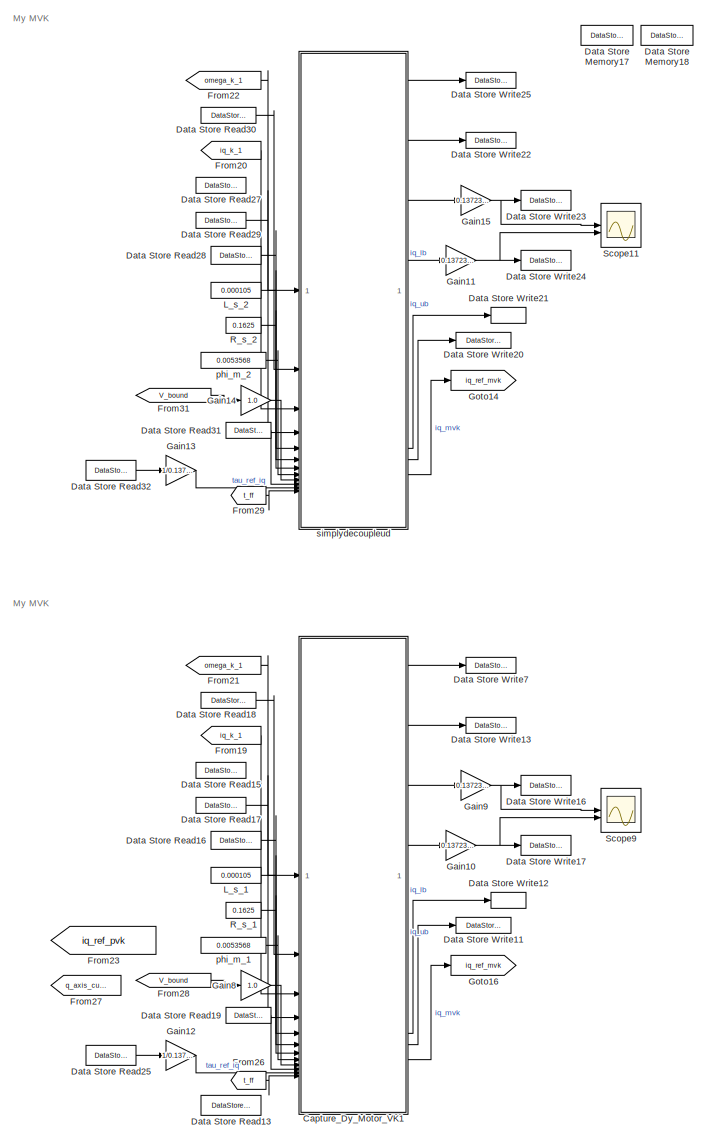
[diagram: root canvas - part 1/5, top left region]
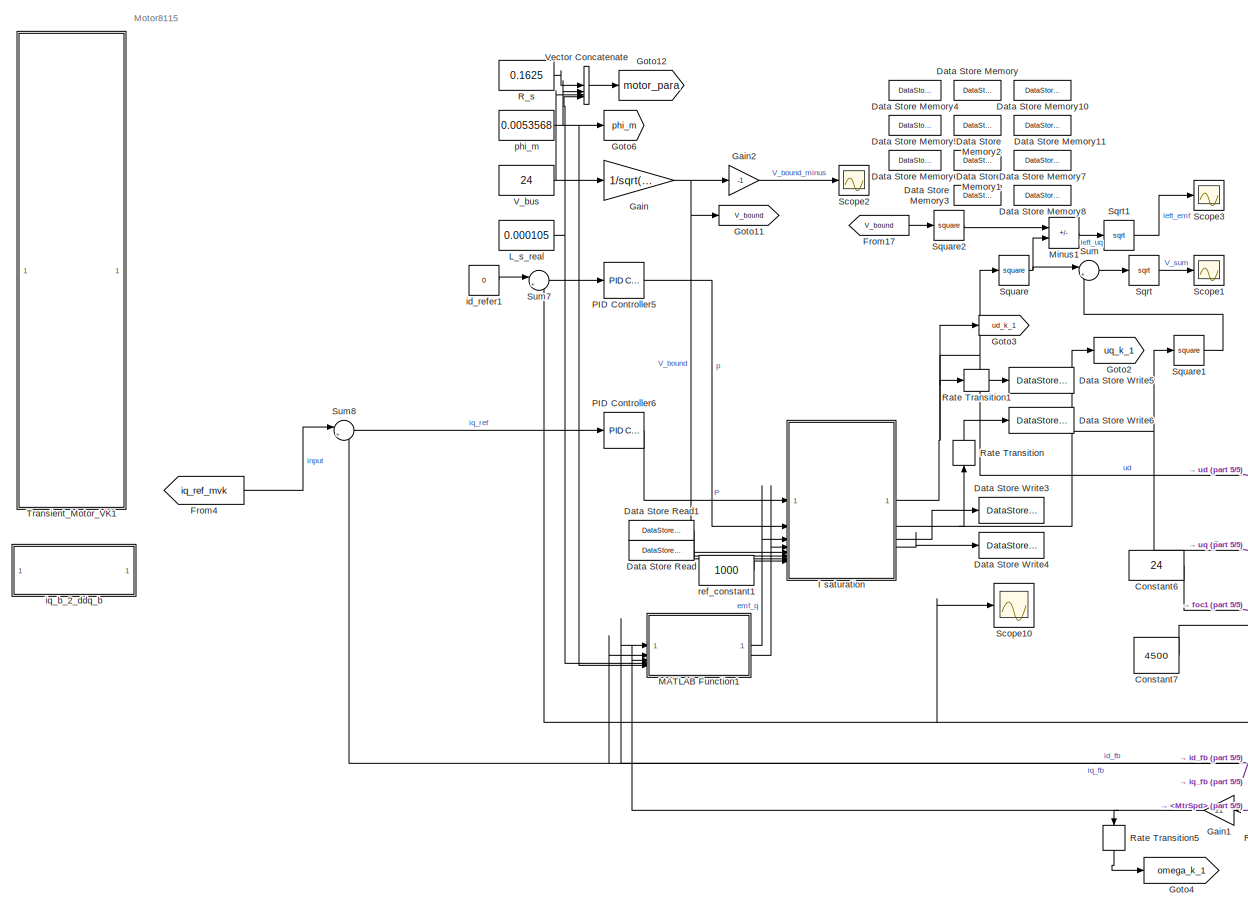
[diagram: root canvas - part 2/5, bottom center region]
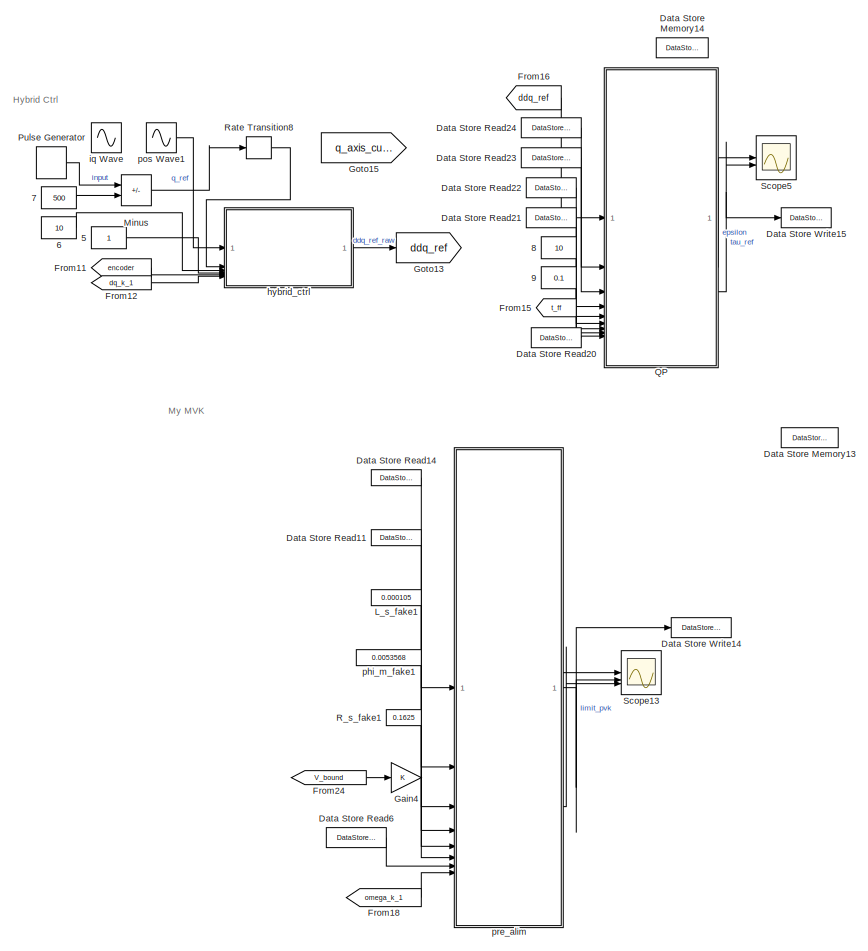
[diagram: root canvas - part 3/5, bottom left region]
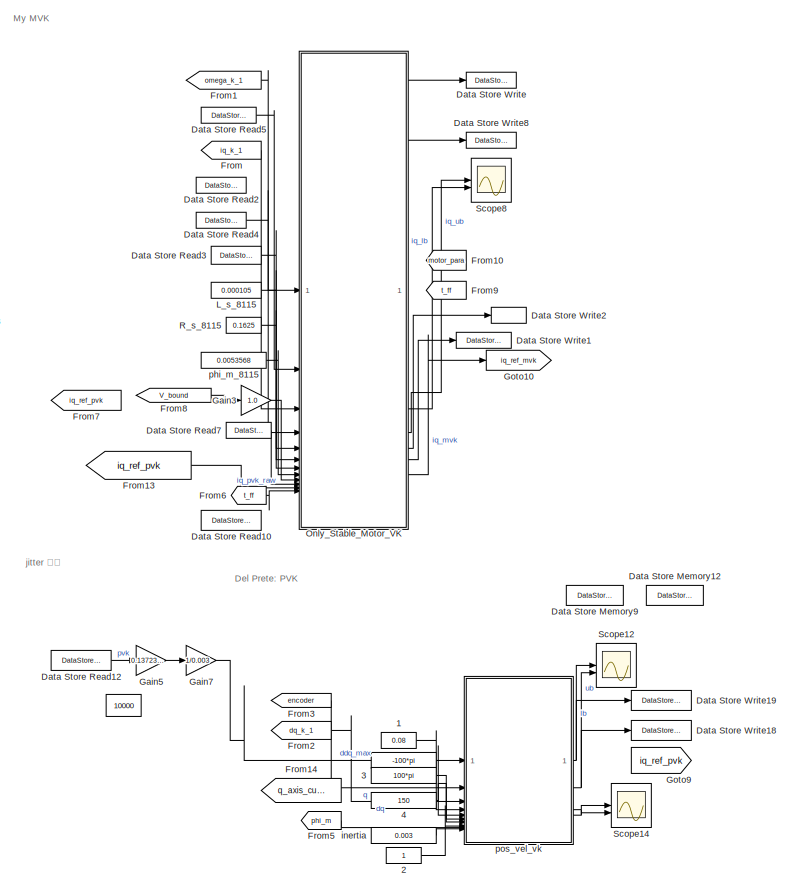
[diagram: root canvas - part 4/5, bottom left region]
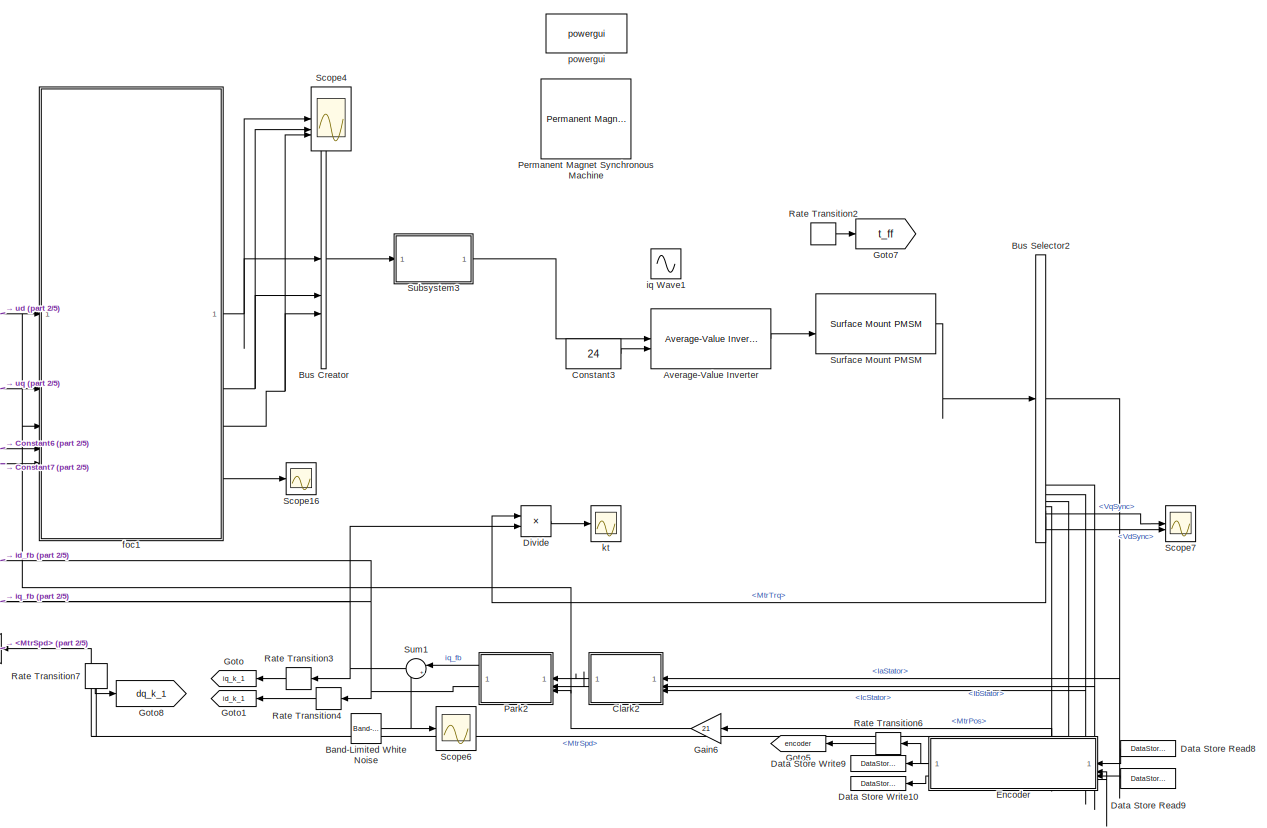
[diagram: root canvas - part 5/5, bottom right region]
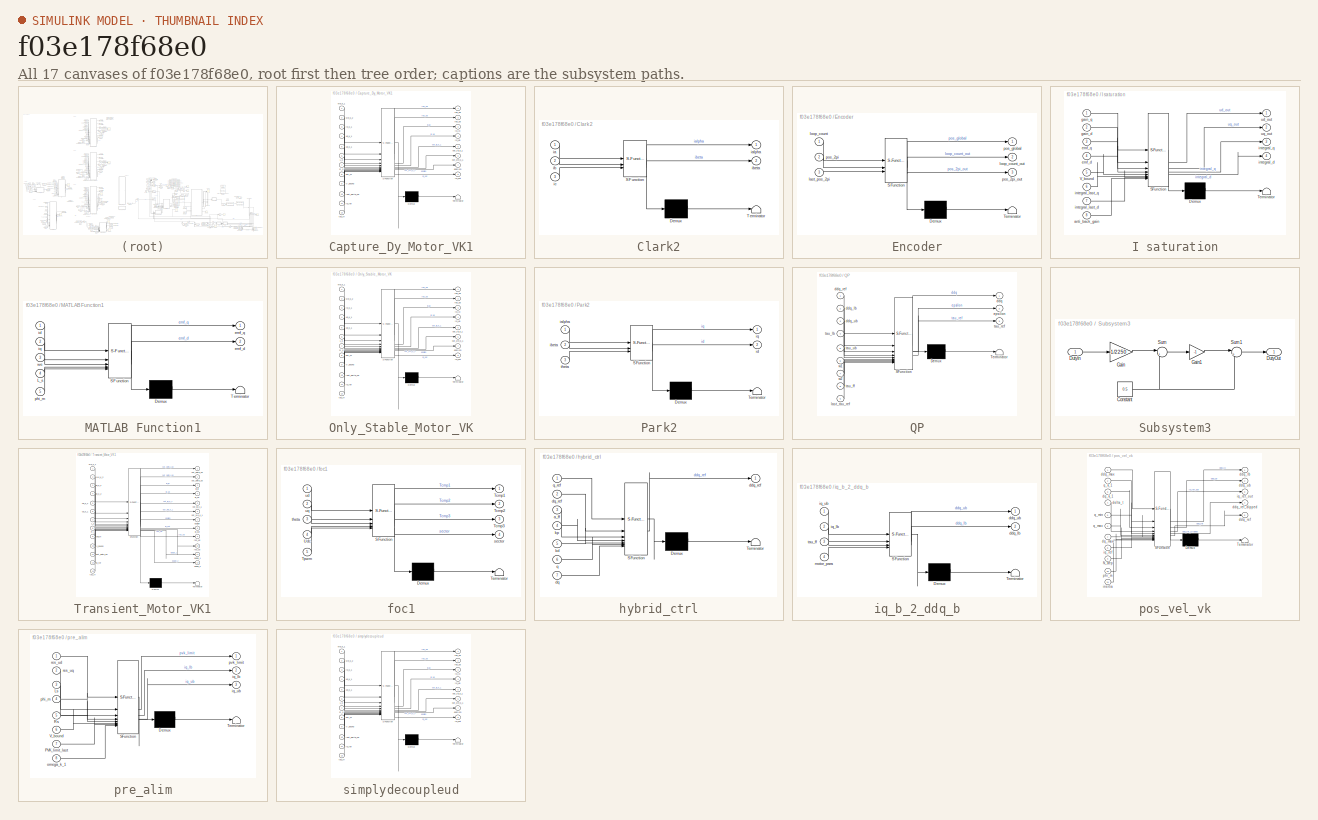
[diagram: thumbnail index - all 17 canvases of the model, root first then tree order]
MODEL slx_f03e178f68e0
KIND model
CONFIG AbsTol = auto
CONFIG EnableMultiTasking = on
CONFIG FixedStep = 0.000025
CONFIG InitFcn = Ld=5.25e-3;\nLq=12e-3;\nR=0.958;\nf=0.1827;
CONFIG MaxStep = auto
CONFIG MinStep = auto
CONFIG RelTol = 1e-7
CONFIG SampleTimeConstraint = Unconstrained
CONFIG SolverName = FixedStepAuto
CONFIG StartTime = 0.0
CONFIG StopTime = 1
WORKSPACE source: mxarray member
WORKSPACE f: Simulink.Signal (value not decoded)
BLOCK [Constant]  
  Value = 10000
BLOCK [Constant]   
  Value = -100*pi
BLOCK [Constant]  1
  Value = 0.08
BLOCK [Constant]  2
BLOCK [Constant]  3
  Value = 100*pi
BLOCK [Constant]  4
  Value = 150
BLOCK [Constant]  5
BLOCK [Constant]  6
  Value = 10
BLOCK [Constant]  7
  Value = 500
BLOCK [Constant]  8
  Value = 10
BLOCK [Constant]  9
  Value = 0.1
BLOCK [Reference] Average-Value Inverter  REF=mcbplantlib/Average-Value Inverter
  SourceBlock = mcbplantlib/Average-Value Inverter
  SourceType = Average Value Inverter
BLOCK [Reference] Band-Limited White Noise  REF=simulink/Sources/Band-Limited
White Noise
  SourceBlock = simulink/Sources/Band-Limited\nWhite Noise
  SourceType = Band-Limited White Noise.
BLOCK [BusCreator] Bus Creator
  DisplayOption = bar
  InheritFromInputs = on
  Inputs = 3
BLOCK [BusSelector] Bus Selector2
  OutputSignals = IaStator,IqSync,IdSync,IbStator,IcStator,MtrSpd,MtrPos,MtrTrq,VqSync,VdSync
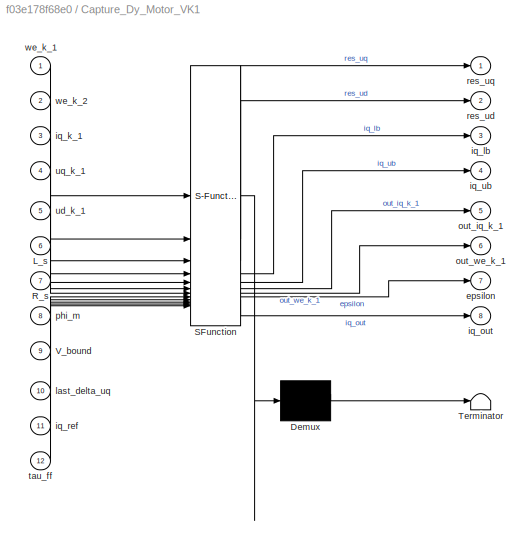
BLOCK [SubSystem] Capture_Dy_Motor_VK1
  Commented = on
  ErrorFcn = Stateflow.Translate.translate
  PermitHierarchicalResolution = ExplicitOnly
  SFBlockType = MATLAB Function
  TreatAsAtomicUnit = on
BLOCK [Demux] Capture_Dy_Motor_VK1/ Demux 
  Outputs = 1
BLOCK [S-Function] Capture_Dy_Motor_VK1/ SFunction 
  EnableBusSupport = on
  FunctionName = sf_sfun
  PortCounts = [12 9]
  SFcnIsStateOwnerBlock = off
  SFunctionDeploymentMode = off
  Tag = Stateflow S-Function 13
BLOCK [Terminator] Capture_Dy_Motor_VK1/ Terminator 
BLOCK [Inport] Capture_Dy_Motor_VK1/L_s
  Port = 6
BLOCK [Inport] Capture_Dy_Motor_VK1/R_s
  Port = 7
BLOCK [Inport] Capture_Dy_Motor_VK1/V_bound
  Port = 9
BLOCK [Outport] Capture_Dy_Motor_VK1/epsilon
  Port = 7
BLOCK [Inport] Capture_Dy_Motor_VK1/iq_k_1
  Port = 3
BLOCK [Outport] Capture_Dy_Motor_VK1/iq_lb
  Port = 3
BLOCK [Outport] Capture_Dy_Motor_VK1/iq_out
  Port = 8
BLOCK [Inport] Capture_Dy_Motor_VK1/iq_ref
  Port = 11
BLOCK [Outport] Capture_Dy_Motor_VK1/iq_ub
  Port = 4
BLOCK [Inport] Capture_Dy_Motor_VK1/last_delta_uq
  Port = 10
BLOCK [Outport] Capture_Dy_Motor_VK1/out_iq_k_1
  Port = 5
BLOCK [Outport] Capture_Dy_Motor_VK1/out_we_k_1
  Port = 6
BLOCK [Inport] Capture_Dy_Motor_VK1/phi_m
  Port = 8
BLOCK [Outport] Capture_Dy_Motor_VK1/res_ud
  Port = 2
BLOCK [Outport] Capture_Dy_Motor_VK1/res_uq
BLOCK [Inport] Capture_Dy_Motor_VK1/tau_ff
  Port = 12
BLOCK [Inport] Capture_Dy_Motor_VK1/ud_k_1
  Port = 5
BLOCK [Inport] Capture_Dy_Motor_VK1/uq_k_1
  Port = 4
BLOCK [Inport] Capture_Dy_Motor_VK1/we_k_1
BLOCK [Inport] Capture_Dy_Motor_VK1/we_k_2
  Port = 2
BLOCK [SubSystem] Clark2
  ErrorFcn = Stateflow.Translate.translate
  NameLocation = top
  PermitHierarchicalResolution = ExplicitOnly
  SFBlockType = MATLAB Function
  TreatAsAtomicUnit = on
BLOCK [Demux] Clark2/ Demux 
  Outputs = 1
BLOCK [S-Function] Clark2/ SFunction 
  EnableBusSupport = on
  FunctionName = sf_sfun
  PortCounts = [3 3]
  SFcnIsStateOwnerBlock = off
  SFunctionDeploymentMode = off
  Tag = Stateflow S-Function 10
BLOCK [Terminator] Clark2/ Terminator 
BLOCK [Inport] Clark2/ia
BLOCK [Outport] Clark2/ialpha
BLOCK [Inport] Clark2/ib
  Port = 2
BLOCK [Outport] Clark2/ibeta
  Port = 2
BLOCK [Inport] Clark2/ic
  Port = 3
BLOCK [Constant] Constant3
  Value = 24
BLOCK [Constant] Constant6
  Value = 24
BLOCK [Constant] Constant7
  OutDataTypeStr = single
  Value = 4500
BLOCK [DataStoreMemory] Data Store Memory
  DataStoreName = vel_out
  OutDataTypeStr = double
  ReadBeforeWriteMsg = warning
  ShowAdditionalParam = off
  SignalType = real
  WriteAfterReadMsg = warning
  WriteAfterWriteMsg = warning
BLOCK [DataStoreMemory] Data Store Memory1
  DataStoreName = omega_old
  OutDataTypeStr = double
  ReadBeforeWriteMsg = warning
  ShowAdditionalParam = off
  SignalType = real
  WriteAfterReadMsg = warning
  WriteAfterWriteMsg = warning
BLOCK [DataStoreMemory] Data Store Memory10
  DataStoreName = loop_count
  OutDataTypeStr = double
  ReadBeforeWriteMsg = warning
  ShowAdditionalParam = off
  SignalType = real
  WriteAfterReadMsg = warning
  WriteAfterWriteMsg = warning
BLOCK [DataStoreMemory] Data Store Memory11
  DataStoreName = pos_2pi
  OutDataTypeStr = double
  ReadBeforeWriteMsg = warning
  ShowAdditionalParam = off
  SignalType = real
  WriteAfterReadMsg = warning
  WriteAfterWriteMsg = warning
BLOCK [DataStoreMemory] Data Store Memory12
  DataStoreName = ddq_lb
  InitialValue = -1330
  OutDataTypeStr = double
  ReadBeforeWriteMsg = warning
  ShowAdditionalParam = off
  SignalType = real
  WriteAfterReadMsg = warning
  WriteAfterWriteMsg = warning
BLOCK [DataStoreMemory] Data Store Memory13
  DataStoreName = pvk_limit
  OutDataTypeStr = double
  ReadBeforeWriteMsg = warning
  ShowAdditionalParam = off
  SignalType = real
  WriteAfterReadMsg = warning
  WriteAfterWriteMsg = warning
BLOCK [DataStoreMemory] Data Store Memory14
  DataStoreName = tau_ref
  OutDataTypeStr = double
  ReadBeforeWriteMsg = warning
  ShowAdditionalParam = off
  SignalType = real
  WriteAfterReadMsg = warning
  WriteAfterWriteMsg = warning
BLOCK [DataStoreMemory] Data Store Memory17
  DataStoreName = tau_lb
  InitialValue = -4
  OutDataTypeStr = double
  ReadBeforeWriteMsg = warning
  ShowAdditionalParam = off
  SignalType = real
  WriteAfterReadMsg = warning
  WriteAfterWriteMsg = warning
BLOCK [DataStoreMemory] Data Store Memory18
  DataStoreName = tau_ub
  InitialValue = 4
  OutDataTypeStr = double
  ReadBeforeWriteMsg = warning
  ShowAdditionalParam = off
  SignalType = real
  WriteAfterReadMsg = warning
  WriteAfterWriteMsg = warning
BLOCK [DataStoreMemory] Data Store Memory2
  DataStoreName = iq_old
  OutDataTypeStr = double
  ReadBeforeWriteMsg = warning
  ShowAdditionalParam = off
  SignalType = real
  WriteAfterReadMsg = warning
  WriteAfterWriteMsg = warning
BLOCK [DataStoreMemory] Data Store Memory3
  DataStoreName = integral_q
  OutDataTypeStr = double
  ReadBeforeWriteMsg = warning
  ShowAdditionalParam = off
  SignalType = real
  WriteAfterReadMsg = warning
  WriteAfterWriteMsg = warning
BLOCK [DataStoreMemory] Data Store Memory4
  DataStoreName = integral_d
  OutDataTypeStr = double
  ReadBeforeWriteMsg = warning
  ShowAdditionalParam = off
  SignalType = real
  WriteAfterReadMsg = warning
  WriteAfterWriteMsg = warning
BLOCK [DataStoreMemory] Data Store Memory5
  DataStoreName = uq_k_1
  OutDataTypeStr = double
  ReadBeforeWriteMsg = warning
  ShowAdditionalParam = off
  SignalType = real
  WriteAfterReadMsg = warning
  WriteAfterWriteMsg = warning
BLOCK [DataStoreMemory] Data Store Memory6
  DataStoreName = ud_k_1
  OutDataTypeStr = double
  ReadBeforeWriteMsg = warning
  ShowAdditionalParam = off
  SignalType = real
  WriteAfterReadMsg = warning
  WriteAfterWriteMsg = warning
BLOCK [DataStoreMemory] Data Store Memory7
  DataStoreName = delta_uq
  OutDataTypeStr = double
  ReadBeforeWriteMsg = warning
  ShowAdditionalParam = off
  SignalType = real
  WriteAfterReadMsg = warning
  WriteAfterWriteMsg = warning
BLOCK [DataStoreMemory] Data Store Memory8
  DataStoreName = delta_ud
  OutDataTypeStr = double
  ReadBeforeWriteMsg = warning
  ShowAdditionalParam = off
  SignalType = real
  WriteAfterReadMsg = warning
  WriteAfterWriteMsg = warning
BLOCK [DataStoreMemory] Data Store Memory9
  DataStoreName = ddq_ub
  InitialValue = 1330
  OutDataTypeStr = double
  ReadBeforeWriteMsg = warning
  ShowAdditionalParam = off
  SignalType = real
  WriteAfterReadMsg = warning
  WriteAfterWriteMsg = warning
BLOCK [DataStoreRead] Data Store Read
  DataStoreElements = integral_d
  DataStoreName = integral_d
  IndexOptions = Index vector (dialog)
  Indices = 1
  OutputSizes = 1
BLOCK [DataStoreRead] Data Store Read1
  DataStoreElements = integral_q
  DataStoreName = integral_q
  IndexOptions = Index vector (dialog)
  Indices = 1
  OutputSizes = 1
BLOCK [DataStoreRead] Data Store Read10
  Commented = on
  DataStoreName = pvk_limit
  IndexOptions = Index vector (dialog)
  Indices = 1
  OutputSizes = 1
BLOCK [DataStoreRead] Data Store Read11
  DataStoreName = delta_uq
  IndexOptions = Index vector (dialog)
  Indices = 1
  OutputSizes = 1
BLOCK [DataStoreRead] Data Store Read12
  DataStoreName = pvk_limit
  IndexOptions = Index vector (dialog)
  Indices = 1
  OutputSizes = 1
BLOCK [DataStoreRead] Data Store Read13
  Commented = on
  DataStoreName = pvk_limit
  IndexOptions = Index vector (dialog)
  Indices = 1
  OutputSizes = 1
BLOCK [DataStoreRead] Data Store Read14
  DataStoreName = delta_ud
  IndexOptions = Index vector (dialog)
  Indices = 1
  OutputSizes = 1
BLOCK [DataStoreRead] Data Store Read15
  Commented = on
  DataStoreElements = iq_old
  DataStoreName = iq_old
  IndexOptions = Index vector (dialog)
  Indices = 1
  OutputSizes = 1
BLOCK [DataStoreRead] Data Store Read16
  Commented = on
  DataStoreName = ud_k_1
  IndexOptions = Index vector (dialog)
  Indices = 1
  OutputSizes = 1
BLOCK [DataStoreRead] Data Store Read17
  Commented = on
  DataStoreName = uq_k_1
  IndexOptions = Index vector (dialog)
  Indices = 1
  OutputSizes = 1
BLOCK [DataStoreRead] Data Store Read18
  Commented = on
  DataStoreName = omega_old
  IndexOptions = Index vector (dialog)
  Indices = 1
  OutputSizes = 1
BLOCK [DataStoreRead] Data Store Read19
  Commented = on
  DataStoreName = delta_uq
  IndexOptions = Index vector (dialog)
  Indices = 1
  OutputSizes = 1
BLOCK [DataStoreRead] Data Store Read2
  Commented = on
  DataStoreElements = iq_old
  DataStoreName = iq_old
  IndexOptions = Index vector (dialog)
  Indices = 1
  OutputSizes = 1
BLOCK [DataStoreRead] Data Store Read20
  DataStoreName = tau_ref
  IndexOptions = Index vector (dialog)
  Indices = 1
  OutputSizes = 1
BLOCK [DataStoreRead] Data Store Read21
  DataStoreName = tau_ub
  IndexOptions = Index vector (dialog)
  Indices = 1
  OutputSizes = 1
BLOCK [DataStoreRead] Data Store Read22
  DataStoreName = tau_lb
  IndexOptions = Index vector (dialog)
  Indices = 1
  OutputSizes = 1
BLOCK [DataStoreRead] Data Store Read23
  DataStoreName = ddq_ub
  IndexOptions = Index vector (dialog)
  Indices = 1
  OutputSizes = 1
BLOCK [DataStoreRead] Data Store Read24
  DataStoreName = ddq_lb
  IndexOptions = Index vector (dialog)
  Indices = 1
  OutputSizes = 1
BLOCK [DataStoreRead] Data Store Read25
  Commented = on
  DataStoreName = tau_ref
  IndexOptions = Index vector (dialog)
  Indices = 1
  OutputSizes = 1
BLOCK [DataStoreRead] Data Store Read27
  DataStoreElements = iq_old
  DataStoreName = iq_old
  IndexOptions = Index vector (dialog)
  Indices = 1
  OutputSizes = 1
BLOCK [DataStoreRead] Data Store Read28
  DataStoreName = ud_k_1
  IndexOptions = Index vector (dialog)
  Indices = 1
  OutputSizes = 1
BLOCK [DataStoreRead] Data Store Read29
  DataStoreName = uq_k_1
  IndexOptions = Index vector (dialog)
  Indices = 1
  OutputSizes = 1
BLOCK [DataStoreRead] Data Store Read3
  Commented = on
  DataStoreName = ud_k_1
  IndexOptions = Index vector (dialog)
  Indices = 1
  OutputSizes = 1
BLOCK [DataStoreRead] Data Store Read30
  DataStoreName = omega_old
  IndexOptions = Index vector (dialog)
  Indices = 1
  OutputSizes = 1
BLOCK [DataStoreRead] Data Store Read31
  DataStoreName = delta_uq
  IndexOptions = Index vector (dialog)
  Indices = 1
  OutputSizes = 1
BLOCK [DataStoreRead] Data Store Read32
  DataStoreName = tau_ref
  IndexOptions = Index vector (dialog)
  Indices = 1
  OutputSizes = 1
BLOCK [DataStoreRead] Data Store Read4
  Commented = on
  DataStoreName = uq_k_1
  IndexOptions = Index vector (dialog)
  Indices = 1
  OutputSizes = 1
BLOCK [DataStoreRead] Data Store Read5
  Commented = on
  DataStoreName = omega_old
  IndexOptions = Index vector (dialog)
  Indices = 1
  OutputSizes = 1
BLOCK [DataStoreRead] Data Store Read6
  DataStoreName = pvk_limit
  IndexOptions = Index vector (dialog)
  Indices = 1
  OutputSizes = 1
BLOCK [DataStoreRead] Data Store Read7
  Commented = on
  DataStoreName = delta_uq
  IndexOptions = Index vector (dialog)
  Indices = 1
  OutputSizes = 1
BLOCK [DataStoreRead] Data Store Read8
  DataStoreName = loop_count
  IndexOptions = Index vector (dialog)
  Indices = 1
  NameLocation = top
  OutputSizes = 1
BLOCK [DataStoreRead] Data Store Read9
  DataStoreName = pos_2pi
  IndexOptions = Index vector (dialog)
  Indices = 1
  NameLocation = top
  OutputSizes = 1
BLOCK [DataStoreWrite] Data Store Write
  Commented = on
  DataStoreName = delta_uq
  IndexOptions = Index vector (dialog)
  Indices = 1
  OutputSizes = 1
BLOCK [DataStoreWrite] Data Store Write1
  Commented = on
  DataStoreElements = omega_old
  DataStoreName = omega_old
  IndexOptions = Index vector (dialog)
  Indices = 1
  OutputSizes = 1
BLOCK [DataStoreWrite] Data Store Write10
  DataStoreName = pos_2pi
  IndexOptions = Index vector (dialog)
  Indices = 1
  NameLocation = top
  OutputSizes = 1
BLOCK [DataStoreWrite] Data Store Write11
  Commented = on
  DataStoreElements = omega_old
  DataStoreName = omega_old
  IndexOptions = Index vector (dialog)
  Indices = 1
  OutputSizes = 1
BLOCK [DataStoreWrite] Data Store Write12
  Commented = on
  DataStoreElements = iq_old
  DataStoreName = iq_old
  IndexOptions = Index vector (dialog)
  Indices = 1
  OutputSizes = 1
BLOCK [DataStoreWrite] Data Store Write13
  Commented = on
  DataStoreName = delta_ud
  IndexOptions = Index vector (dialog)
  Indices = 1
  OutputSizes = 1
BLOCK [DataStoreWrite] Data Store Write14
  DataStoreName = pvk_limit
  IndexOptions = Index vector (dialog)
  Indices = 1
  OutputSizes = 1
BLOCK [DataStoreWrite] Data Store Write15
  DataStoreName = tau_ref
  IndexOptions = Index vector (dialog)
  Indices = 1
  OutputSizes = 1
BLOCK [DataStoreWrite] Data Store Write16
  Commented = on
  DataStoreName = tau_lb
  IndexOptions = Index vector (dialog)
  Indices = 1
  OutputSizes = 1
BLOCK [DataStoreWrite] Data Store Write17
  Commented = on
  DataStoreName = tau_ub
  IndexOptions = Index vector (dialog)
  Indices = 1
  OutputSizes = 1
BLOCK [DataStoreWrite] Data Store Write18
  DataStoreName = ddq_ub
  IndexOptions = Index vector (dialog)
  Indices = 1
  OutputSizes = 1
BLOCK [DataStoreWrite] Data Store Write19
  DataStoreName = ddq_lb
  IndexOptions = Index vector (dialog)
  Indices = 1
  OutputSizes = 1
BLOCK [DataStoreWrite] Data Store Write2
  Commented = on
  DataStoreElements = iq_old
  DataStoreName = iq_old
  IndexOptions = Index vector (dialog)
  Indices = 1
  OutputSizes = 1
BLOCK [DataStoreWrite] Data Store Write20
  DataStoreElements = omega_old
  DataStoreName = omega_old
  IndexOptions = Index vector (dialog)
  Indices = 1
  OutputSizes = 1
BLOCK [DataStoreWrite] Data Store Write21
  DataStoreElements = iq_old
  DataStoreName = iq_old
  IndexOptions = Index vector (dialog)
  Indices = 1
  OutputSizes = 1
BLOCK [DataStoreWrite] Data Store Write22
  DataStoreName = delta_ud
  IndexOptions = Index vector (dialog)
  Indices = 1
  OutputSizes = 1
BLOCK [DataStoreWrite] Data Store Write23
  DataStoreName = tau_lb
  IndexOptions = Index vector (dialog)
  Indices = 1
  OutputSizes = 1
BLOCK [DataStoreWrite] Data Store Write24
  DataStoreName = tau_ub
  IndexOptions = Index vector (dialog)
  Indices = 1
  OutputSizes = 1
BLOCK [DataStoreWrite] Data Store Write25
  DataStoreName = delta_uq
  IndexOptions = Index vector (dialog)
  Indices = 1
  OutputSizes = 1
BLOCK [DataStoreWrite] Data Store Write3
  DataStoreElements = integral_q
  DataStoreName = integral_q
  IndexOptions = Index vector (dialog)
  Indices = 1
  OutputSizes = 1
BLOCK [DataStoreWrite] Data Store Write4
  DataStoreElements = integral_d
  DataStoreName = integral_d
  IndexOptions = Index vector (dialog)
  Indices = 1
  OutputSizes = 1
BLOCK [DataStoreWrite] Data Store Write5
  DataStoreElements = ud_k_1
  DataStoreName = ud_k_1
  IndexOptions = Index vector (dialog)
  Indices = 1
  OutputSizes = 1
BLOCK [DataStoreWrite] Data Store Write6
  DataStoreElements = uq_k_1
  DataStoreName = uq_k_1
  IndexOptions = Index vector (dialog)
  Indices = 1
  OutputSizes = 1
BLOCK [DataStoreWrite] Data Store Write7
  Commented = on
  DataStoreName = delta_uq
  IndexOptions = Index vector (dialog)
  Indices = 1
  OutputSizes = 1
BLOCK [DataStoreWrite] Data Store Write8
  Commented = on
  DataStoreName = delta_ud
  IndexOptions = Index vector (dialog)
  Indices = 1
  OutputSizes = 1
BLOCK [DataStoreWrite] Data Store Write9
  DataStoreName = loop_count
  IndexOptions = Index vector (dialog)
  Indices = 1
  NameLocation = top
  OutputSizes = 1
BLOCK [Product] Divide
  Inputs = */
BLOCK [SubSystem] Encoder
  ErrorFcn = Stateflow.Translate.translate
  NameLocation = top
  PermitHierarchicalResolution = ExplicitOnly
  SFBlockType = MATLAB Function
  TreatAsAtomicUnit = on
BLOCK [Demux] Encoder/ Demux 
  Outputs = 1
BLOCK [S-Function] Encoder/ SFunction 
  EnableBusSupport = on
  FunctionName = sf_sfun
  PortCounts = [3 4]
  SFcnIsStateOwnerBlock = off
  SFunctionDeploymentMode = off
  Tag = Stateflow S-Function 3
BLOCK [Terminator] Encoder/ Terminator 
BLOCK [Inport] Encoder/last_pos_2pi
  Port = 3
BLOCK [Inport] Encoder/loop_count
BLOCK [Outport] Encoder/loop_count_out
  Port = 2
BLOCK [Inport] Encoder/pos_2pi
  Port = 2
BLOCK [Outport] Encoder/pos_2pi_out
  Port = 3
BLOCK [Outport] Encoder/pos_global
BLOCK [From] From
  Commented = on
  GotoTag = iq_k_1
BLOCK [From] From1
  Commented = on
  GotoTag = omega_k_1
BLOCK [From] From10
  Commented = on
  GotoTag = motor_para
BLOCK [From] From11
  GotoTag = encoder
BLOCK [From] From12
  GotoTag = dq_k_1
BLOCK [From] From13
  Commented = on
  GotoTag = iq_ref_pvk
BLOCK [From] From14
  GotoTag = q_axis_current
BLOCK [From] From15
  GotoTag = t_ff
BLOCK [From] From16
  GotoTag = ddq_ref
BLOCK [From] From17
  GotoTag = V_bound
BLOCK [From] From18
  GotoTag = omega_k_1
BLOCK [From] From19
  Commented = on
  GotoTag = iq_k_1
BLOCK [From] From2
  GotoTag = dq_k_1
BLOCK [From] From20
  GotoTag = iq_k_1
BLOCK [From] From21
  Commented = on
  GotoTag = omega_k_1
BLOCK [From] From22
  GotoTag = omega_k_1
BLOCK [From] From23
  Commented = on
  GotoTag = iq_ref_pvk
BLOCK [From] From24
  GotoTag = V_bound
BLOCK [From] From26
  Commented = on
  GotoTag = t_ff
BLOCK [From] From27
  Commented = on
  GotoTag = q_axis_current
BLOCK [From] From28
  Commented = on
  GotoTag = V_bound
BLOCK [From] From29
  GotoTag = t_ff
BLOCK [From] From3
  GotoTag = encoder
BLOCK [From] From31
  GotoTag = V_bound
BLOCK [From] From4
  GotoTag = iq_ref_mvk
BLOCK [From] From5
  GotoTag = phi_m
BLOCK [From] From6
  Commented = on
  GotoTag = t_ff
BLOCK [From] From7
  Commented = on
  GotoTag = iq_ref_pvk
BLOCK [From] From8
  Commented = on
  GotoTag = V_bound
BLOCK [From] From9
  Commented = on
  GotoTag = t_ff
BLOCK [Gain] Gain
  Gain = 1/sqrt(3)
BLOCK [Gain] Gain1
  Gain = 21
  NameLocation = top
BLOCK [Gain] Gain10
  Commented = on
  Gain = 0.1372392
BLOCK [Gain] Gain11
  Gain = 0.1372392
BLOCK [Gain] Gain12
  Commented = on
  Gain = 1/0.1372392
BLOCK [Gain] Gain13
  Gain = 1/0.1372392
BLOCK [Gain] Gain14
  Gain = 1.0
BLOCK [Gain] Gain15
  Gain = 0.1372392
BLOCK [Gain] Gain2
  Gain = -1
BLOCK [Gain] Gain3
  Commented = on
  Gain = 1.0
BLOCK [Gain] Gain4
BLOCK [Gain] Gain5
  Gain = 0.1372392
BLOCK [Gain] Gain6
  Gain = 21
  NameLocation = top
BLOCK [Gain] Gain7
  Gain = 1/0.003
BLOCK [Gain] Gain8
  Commented = on
  Gain = 1.0
BLOCK [Gain] Gain9
  Commented = on
  Gain = 0.1372392
BLOCK [Goto] Goto
  GotoTag = iq_k_1
  NameLocation = top
BLOCK [Goto] Goto1
  GotoTag = id_k_1
  NameLocation = top
BLOCK [Goto] Goto10
  Commented = on
  GotoTag = iq_ref_mvk
BLOCK [Goto] Goto11
  GotoTag = V_bound
BLOCK [Goto] Goto12
  GotoTag = motor_para
BLOCK [Goto] Goto13
  GotoTag = ddq_ref
BLOCK [Goto] Goto14
  GotoTag = iq_ref_mvk
BLOCK [Goto] Goto15
  GotoTag = q_axis_current
BLOCK [Goto] Goto16
  Commented = on
  GotoTag = iq_ref_mvk
BLOCK [Goto] Goto2
  GotoTag = uq_k_1
BLOCK [Goto] Goto3
  GotoTag = ud_k_1
BLOCK [Goto] Goto4
  GotoTag = omega_k_1
BLOCK [Goto] Goto5
  GotoTag = encoder
  NameLocation = top
BLOCK [Goto] Goto6
  GotoTag = phi_m
BLOCK [Goto] Goto7
  GotoTag = t_ff
BLOCK [Goto] Goto8
  GotoTag = dq_k_1
BLOCK [Goto] Goto9
  GotoTag = iq_ref_pvk
BLOCK [SubSystem] I saturation
  ErrorFcn = Stateflow.Translate.translate
  PermitHierarchicalResolution = ExplicitOnly
  SFBlockType = MATLAB Function
  TreatAsAtomicUnit = on
BLOCK [Demux] I saturation/ Demux 
  Outputs = 1
BLOCK [S-Function] I saturation/ SFunction 
  EnableBusSupport = on
  FunctionName = sf_sfun
  PortCounts = [8 5]
  SFcnIsStateOwnerBlock = off
  SFunctionDeploymentMode = off
  Tag = Stateflow S-Function 5
BLOCK [Terminator] I saturation/ Terminator 
BLOCK [Inport] I saturation/V_bound
  Port = 5
BLOCK [Inport] I saturation/anti_back_gain
  Port = 8
BLOCK [Inport] I saturation/emf_d
  Port = 4
BLOCK [Inport] I saturation/emf_q
  Port = 3
BLOCK [Inport] I saturation/gain_d
  Port = 2
BLOCK [Inport] I saturation/gain_q
BLOCK [Outport] I saturation/integral_d
  Port = 4
BLOCK [Inport] I saturation/integral_last_d
  Port = 7
BLOCK [Inport] I saturation/integral_last_q
  Port = 6
BLOCK [Outport] I saturation/integral_q
  Port = 3
BLOCK [Outport] I saturation/ud_out
BLOCK [Outport] I saturation/uq_out
  Port = 2
BLOCK [Constant] L_s_1
  Commented = on
  Value = 0.000105
BLOCK [Constant] L_s_2
  Value = 0.000105
BLOCK [Constant] L_s_8115
  Commented = on
  Value = 0.000105
BLOCK [Constant] L_s_fake1
  Value = 0.000105
BLOCK [Constant] L_s_real
  Value = 0.000105
BLOCK [SubSystem] MATLAB Function1
  ErrorFcn = Stateflow.Translate.translate
  PermitHierarchicalResolution = ExplicitOnly
  SFBlockType = MATLAB Function
  TreatAsAtomicUnit = on
BLOCK [Demux] MATLAB Function1/ Demux 
  Outputs = 1
BLOCK [S-Function] MATLAB Function1/ SFunction 
  EnableBusSupport = on
  FunctionName = sf_sfun
  PortCounts = [5 3]
  SFcnIsStateOwnerBlock = off
  SFunctionDeploymentMode = off
  Tag = Stateflow S-Function 7
BLOCK [Terminator] MATLAB Function1/ Terminator 
BLOCK [Inport] MATLAB Function1/L_s
  Port = 4
BLOCK [Outport] MATLAB Function1/emf_d
  Port = 2
BLOCK [Outport] MATLAB Function1/emf_q
BLOCK [Inport] MATLAB Function1/id
BLOCK [Inport] MATLAB Function1/iq
  Port = 2
BLOCK [Inport] MATLAB Function1/phi_m
  Port = 5
BLOCK [Inport] MATLAB Function1/we
  Port = 3
BLOCK [Sum] Minus
  IconShape = rectangular
  Inputs = +-
BLOCK [Sum] Minus1
  IconShape = rectangular
  Inputs = +-
BLOCK [SubSystem] Only_Stable_Motor_VK
  Commented = on
  ErrorFcn = Stateflow.Translate.translate
  PermitHierarchicalResolution = ExplicitOnly
  SFBlockType = MATLAB Function
  TreatAsAtomicUnit = on
BLOCK [Demux] Only_Stable_Motor_VK/ Demux 
  Outputs = 1
BLOCK [S-Function] Only_Stable_Motor_VK/ SFunction 
  EnableBusSupport = on
  FunctionName = sf_sfun
  PortCounts = [12 9]
  SFcnIsStateOwnerBlock = off
  SFunctionDeploymentMode = off
  Tag = Stateflow S-Function 1
BLOCK [Terminator] Only_Stable_Motor_VK/ Terminator 
BLOCK [Inport] Only_Stable_Motor_VK/L_s
  Port = 6
BLOCK [Inport] Only_Stable_Motor_VK/R_s
  Port = 7
BLOCK [Inport] Only_Stable_Motor_VK/V_bound
  Port = 9
BLOCK [Outport] Only_Stable_Motor_VK/epsilon
  Port = 7
BLOCK [Inport] Only_Stable_Motor_VK/iq_k_1
  Port = 3
BLOCK [Outport] Only_Stable_Motor_VK/iq_lb
  Port = 3
BLOCK [Outport] Only_Stable_Motor_VK/iq_out
  Port = 8
BLOCK [Inport] Only_Stable_Motor_VK/iq_ref
  Port = 11
BLOCK [Outport] Only_Stable_Motor_VK/iq_ub
  Port = 4
BLOCK [Inport] Only_Stable_Motor_VK/last_delta_uq
  Port = 10
BLOCK [Outport] Only_Stable_Motor_VK/out_iq_k_1
  Port = 5
BLOCK [Outport] Only_Stable_Motor_VK/out_we_k_1
  Port = 6
BLOCK [Inport] Only_Stable_Motor_VK/phi_m
  Port = 8
BLOCK [Outport] Only_Stable_Motor_VK/res_ud
  Port = 2
BLOCK [Outport] Only_Stable_Motor_VK/res_uq
BLOCK [Inport] Only_Stable_Motor_VK/tau_ff
  Port = 12
BLOCK [Inport] Only_Stable_Motor_VK/ud_k_1
  Port = 5
BLOCK [Inport] Only_Stable_Motor_VK/uq_k_1
  Port = 4
BLOCK [Inport] Only_Stable_Motor_VK/we_k_1
BLOCK [Inport] Only_Stable_Motor_VK/we_k_2
  Port = 2
BLOCK [Reference] PID Controller5  REF=slpidlib/PID Controller
  SourceBlock = slpidlib/PID Controller
  SourceType = PID 1dof
BLOCK [Reference] PID Controller6  REF=slpidlib/PID Controller
  SourceBlock = slpidlib/PID Controller
  SourceType = PID 1dof
BLOCK [SubSystem] Park2
  ErrorFcn = Stateflow.Translate.translate
  NameLocation = top
  PermitHierarchicalResolution = ExplicitOnly
  SFBlockType = MATLAB Function
  TreatAsAtomicUnit = on
BLOCK [Demux] Park2/ Demux 
  Outputs = 1
BLOCK [S-Function] Park2/ SFunction 
  EnableBusSupport = on
  FunctionName = sf_sfun
  PortCounts = [3 3]
  SFcnIsStateOwnerBlock = off
  SFunctionDeploymentMode = off
  Tag = Stateflow S-Function 11
BLOCK [Terminator] Park2/ Terminator 
BLOCK [Inport] Park2/ialpha
BLOCK [Inport] Park2/ibeta
  Port = 2
BLOCK [Outport] Park2/id
  Port = 2
BLOCK [Outport] Park2/iq
BLOCK [Inport] Park2/theta
  Port = 3
BLOCK [Reference] Permanent Magnet Synchronous Machine  REF=spsPermanentMagnetSynchronousMachineLib/Permanent Magnet
Synchronous Machine
  Commented = on
  SourceBlock = spsPermanentMagnetSynchronousMachineLib/Permanent Magnet\nSynchronous Machine
  SourceType = Permanent Magnet Synchronous Machine
BLOCK [DiscretePulseGenerator] Pulse Generator
  Amplitude = 1000
  Period = 0.5
  PulseType = Time based
  PulseWidth = 50
BLOCK [SubSystem] QP
  ErrorFcn = Stateflow.Translate.translate
  PermitHierarchicalResolution = ExplicitOnly
  SFBlockType = MATLAB Function
  TreatAsAtomicUnit = on
BLOCK [Demux] QP/ Demux 
  Outputs = 1
BLOCK [S-Function] QP/ SFunction 
  EnableBusSupport = on
  FunctionName = sf_sfun
  PortCounts = [9 4]
  SFcnIsStateOwnerBlock = off
  SFunctionDeploymentMode = off
  Tag = Stateflow S-Function 12
BLOCK [Terminator] QP/ Terminator 
BLOCK [Outport] QP/ddq
BLOCK [Inport] QP/ddq_lb
  Port = 2
BLOCK [Inport] QP/ddq_ref
BLOCK [Inport] QP/ddq_ub
  Port = 3
BLOCK [Outport] QP/epsilon
  Port = 2
BLOCK [Inport] QP/last_tau_ref
  Port = 9
BLOCK [Inport] QP/tau_ff
  Port = 8
BLOCK [Inport] QP/tau_lb
  Port = 4
BLOCK [Outport] QP/tau_ref
  Port = 3
BLOCK [Inport] QP/tau_ub
  Port = 5
BLOCK [Inport] QP/w1
  Port = 6
BLOCK [Inport] QP/w2
  Port = 7
BLOCK [Constant] R_s
  Value = 0.1625
BLOCK [Constant] R_s_1
  Commented = on
  Value = 0.1625
BLOCK [Constant] R_s_2
  Value = 0.1625
BLOCK [Constant] R_s_8115
  Commented = on
  Value = 0.1625
BLOCK [Constant] R_s_fake1
  Value = 0.1625
BLOCK [RateTransition] Rate Transition
  NameLocation = right
  OutPortSampleTime = 0.001
BLOCK [RateTransition] Rate Transition1
  OutPortSampleTime = 0.001
BLOCK [RateTransition] Rate Transition2
  OutPortSampleTime = 0.001
BLOCK [RateTransition] Rate Transition3
  NameLocation = top
  OutPortSampleTime = 0.001
BLOCK [RateTransition] Rate Transition4
  NameLocation = top
  OutPortSampleTime = 0.001
BLOCK [RateTransition] Rate Transition5
  NameLocation = left
  OutPortSampleTime = 0.001
BLOCK [RateTransition] Rate Transition6
  NameLocation = top
  OutPortSampleTime = 0.001
BLOCK [RateTransition] Rate Transition7
  NameLocation = left
  OutPortSampleTime = 0.001
BLOCK [RateTransition] Rate Transition8
  OutPortSampleTime = 0.001
BLOCK [Scope] Scope1
  Floating = off
  NumInputPorts = 1
  ScopeSpecificationString = Simulink.scopes.TimeScopeBlockCfg('CurrentConfiguration', extmgr.ConfigurationSet(extmgr.Configuration('Core','General UI',true),extmgr.Configuration('Core','Source UI',true),extmgr.Configuration('Sources','WiredSimulink',true,'DataLoggingVariableName','ScopeData1'),extmgr.Configuration('Visuals','Time Domain',true,'SerializedDisplays',{struct('MinYLimReal','-182.74292','MaxYLimReal','2432.74292',...<+1823ch>
BLOCK [Scope] Scope10
  Floating = off
  NumInputPorts = 1
  ScopeSpecificationString = Simulink.scopes.TimeScopeBlockCfg('CurrentConfiguration', extmgr.ConfigurationSet(extmgr.Configuration('Core','General UI',true),extmgr.Configuration('Core','Source UI',true),extmgr.Configuration('Sources','WiredSimulink',true,'DataLoggingVariableName','ScopeData8'),extmgr.Configuration('Visuals','Time Domain',true,'SerializedDisplays',{struct('MinYLimReal','-1.04126','MaxYLimReal','0.24011','YLab...<+1864ch>
BLOCK [Scope] Scope11
  Floating = off
  NumInputPorts = 2
  ScopeSpecificationString = Simulink.scopes.TimeScopeBlockCfg('CurrentConfiguration', extmgr.ConfigurationSet(extmgr.Configuration('Core','General UI',true),extmgr.Configuration('Core','Source UI',true),extmgr.Configuration('Sources','WiredSimulink',true,'DataLoggingVariableName','ScopeData1'),extmgr.Configuration('Visuals','Time Domain',true,'SerializedDisplays',{struct('MinYLimReal','-6.66153','MaxYLimReal','5.44607','YLab...<+2296ch>
BLOCK [Scope] Scope12
  Floating = off
  NumInputPorts = 2
  ScopeSpecificationString = Simulink.scopes.TimeScopeBlockCfg('CurrentConfiguration', extmgr.ConfigurationSet(extmgr.Configuration('Core','General UI',true),extmgr.Configuration('Core','Source UI',true),extmgr.Configuration('Sources','WiredSimulink',true,'DataLoggingVariableName','ScopeData1'),extmgr.Configuration('Visuals','Time Domain',true,'SerializedDisplays',{struct('MinYLimReal','-2403.57356','MaxYLimReal','2403.57356'...<+2141ch>
BLOCK [Scope] Scope13
  Floating = off
  NumInputPorts = 3
  ScopeSpecificationString = Simulink.scopes.TimeScopeBlockCfg('CurrentConfiguration', extmgr.ConfigurationSet(extmgr.Configuration('Core','General UI',true),extmgr.Configuration('Core','Source UI',true),extmgr.Configuration('Sources','WiredSimulink',true,'DataLoggingVariableName','ScopeData3'),extmgr.Configuration('Visuals','Time Domain',true,'SerializedDisplays',{struct('MinYLimReal','-121.64951','MaxYLimReal','121.71599','...<+2333ch>
BLOCK [Scope] Scope14
  Floating = off
  NumInputPorts = 2
  ScopeSpecificationString = Simulink.scopes.TimeScopeBlockCfg('CurrentConfiguration', extmgr.ConfigurationSet(extmgr.Configuration('Core','General UI',true),extmgr.Configuration('Core','Source UI',true),extmgr.Configuration('Sources','WiredSimulink',true,'DataLoggingVariableName','ScopeData3'),extmgr.Configuration('Visuals','Time Domain',true,'SerializedDisplays',{struct('MinYLimReal','-8972.27461','MaxYLimReal','40726.46696...<+2210ch>
BLOCK [Scope] Scope16
  Floating = off
  NumInputPorts = 1
  ScopeSpecificationString = Simulink.scopes.TimeScopeBlockCfg('CurrentConfiguration', extmgr.ConfigurationSet(extmgr.Configuration('Core','General UI',true),extmgr.Configuration('Core','Source UI',true),extmgr.Configuration('Sources','WiredSimulink',true,'DataLoggingVariableName','ScopeData16'),extmgr.Configuration('Visuals','Time Domain',true,'SerializedDisplays',{struct('MinYLimReal','0.375','MaxYLimReal','6.625','YLabelRe...<+1491ch>
BLOCK [Scope] Scope2
  Floating = off
  NumInputPorts = 1
  ScopeSpecificationString = Simulink.scopes.TimeScopeBlockCfg('CurrentConfiguration', extmgr.ConfigurationSet(extmgr.Configuration('Core','General UI',true),extmgr.Configuration('Core','Source UI',true),extmgr.Configuration('Sources','WiredSimulink',true,'DataLoggingVariableName','ScopeData1'),extmgr.Configuration('Visuals','Time Domain',true,'SerializedDisplays',{struct('MinYLimReal','-23.85641','MaxYLimReal','-3.85641','YL...<+1854ch>
BLOCK [Scope] Scope3
  Floating = off
  NumInputPorts = 1
  ScopeSpecificationString = Simulink.scopes.TimeScopeBlockCfg('CurrentConfiguration', extmgr.ConfigurationSet(extmgr.Configuration('Core','General UI',true),extmgr.Configuration('Core','Source UI',true),extmgr.Configuration('Sources','WiredSimulink',true,'DataLoggingVariableName','ScopeData2'),extmgr.Configuration('Visuals','Time Domain',true,'SerializedDisplays',{struct('MinYLimReal','-182.74292','MaxYLimReal','2432.74292',...<+1823ch>
BLOCK [Scope] Scope4
  Floating = off
  NumInputPorts = 3
  ScopeSpecificationString = Simulink.scopes.TimeScopeBlockCfg('CurrentConfiguration', extmgr.ConfigurationSet(extmgr.Configuration('Core','General UI',true),extmgr.Configuration('Core','Source UI',true),extmgr.Configuration('Sources','WiredSimulink',true,'DataLoggingVariableName','ScopeData1'),extmgr.Configuration('Visuals','Time Domain',true,'SerializedDisplays',{struct('MinYLimReal','-182.74292','MaxYLimReal','2432.74292',...<+1887ch>
BLOCK [Scope] Scope5
  Floating = off
  NumInputPorts = 2
  ScopeSpecificationString = Simulink.scopes.TimeScopeBlockCfg('CurrentConfiguration', extmgr.ConfigurationSet(extmgr.Configuration('Core','General UI',true),extmgr.Configuration('Core','Source UI',true),extmgr.Configuration('Sources','WiredSimulink',true,'DataLoggingVariableName','ScopeData2'),extmgr.Configuration('Visuals','Time Domain',true,'SerializedDisplays',{struct('MinYLimReal','-5.85819','MaxYLimReal','6.65596','YLab...<+2300ch>
BLOCK [Scope] Scope6
  Floating = off
  NumInputPorts = 1
  ScopeSpecificationString = Simulink.scopes.TimeScopeBlockCfg('CurrentConfiguration', extmgr.ConfigurationSet(extmgr.Configuration('Core','General UI',true),extmgr.Configuration('Core','Source UI',true),extmgr.Configuration('Sources','WiredSimulink',true,'DataLoggingVariableName','ScopeData1'),extmgr.Configuration('Visuals','Time Domain',true,'SerializedDisplays',{struct('MinYLimReal','-10.95964','MaxYLimReal','6.71318','YLa...<+1888ch>
BLOCK [Scope] Scope7
  Floating = off
  NumInputPorts = 2
  ScopeSpecificationString = Simulink.scopes.TimeScopeBlockCfg('CurrentConfiguration', extmgr.ConfigurationSet(extmgr.Configuration('Core','General UI',true),extmgr.Configuration('Core','Source UI',true),extmgr.Configuration('Sources','WiredSimulink',true,'DataLoggingVariableName','ScopeData1'),extmgr.Configuration('Visuals','Time Domain',true,'SerializedDisplays',{struct('MinYLimReal','-20.90799','MaxYLimReal','20.90799','YL...<+2422ch>
BLOCK [Scope] Scope8
  Commented = on
  Floating = off
  NumInputPorts = 2
  ScopeSpecificationString = Simulink.scopes.TimeScopeBlockCfg('CurrentConfiguration', extmgr.ConfigurationSet(extmgr.Configuration('Core','General UI',true),extmgr.Configuration('Core','Source UI',true),extmgr.Configuration('Sources','WiredSimulink',true,'DataLoggingVariableName','ScopeData1'),extmgr.Configuration('Visuals','Time Domain',true,'SerializedDisplays',{struct('MinYLimReal','-113.14667','MaxYLimReal','115.2172','Y...<+2317ch>
BLOCK [Scope] Scope9
  Commented = on
  Floating = off
  NumInputPorts = 2
  ScopeSpecificationString = Simulink.scopes.TimeScopeBlockCfg('CurrentConfiguration', extmgr.ConfigurationSet(extmgr.Configuration('Core','General UI',true),extmgr.Configuration('Core','Source UI',true),extmgr.Configuration('Sources','WiredSimulink',true,'DataLoggingVariableName','ScopeData1'),extmgr.Configuration('Visuals','Time Domain',true,'SerializedDisplays',{struct('MinYLimReal','-6.66153','MaxYLimReal','5.44607','YLab...<+2296ch>
BLOCK [Sqrt] Sqrt
BLOCK [Sqrt] Sqrt1
BLOCK [Math] Square
  Operator = square
BLOCK [Math] Square1
  Operator = square
BLOCK [Math] Square2
  Operator = square
BLOCK [SubSystem] Subsystem3
BLOCK [Constant] Subsystem3/Constant
  SampleTime = -1
  Value = 0.5
BLOCK [Inport] Subsystem3/DutyIn
BLOCK [Outport] Subsystem3/DutyOut
BLOCK [Gain] Subsystem3/Gain
  Gain = 1/2250
  ParamDataTypeStr = single
BLOCK [Gain] Subsystem3/Gain1
  Gain = -1
BLOCK [Sum] Subsystem3/Sum
  Inputs = |+-
BLOCK [Sum] Subsystem3/Sum1
  Inputs = |++
BLOCK [Sum] Sum
  Inputs = |++
BLOCK [Sum] Sum1
  Inputs = |++
  NameLocation = top
BLOCK [Sum] Sum7
  Inputs = |+-
BLOCK [Sum] Sum8
  Inputs = |+-
BLOCK [Reference] Surface Mount PMSM  REF=autolibpmsmexterior/Surface Mount PMSM
  LibrarySourceBlock = mcblib/Electrical Systems/Motors/Surface Mount PMSM
  SourceBlock = autolibpmsmexterior/Surface Mount PMSM
  SourceType = Surface Mount PMSM
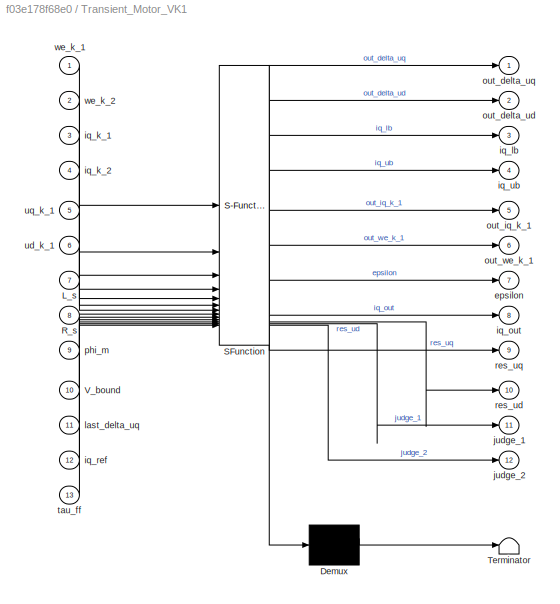
BLOCK [SubSystem] Transient_Motor_VK1
  Commented = on
  ErrorFcn = Stateflow.Translate.translate
  PermitHierarchicalResolution = ExplicitOnly
  SFBlockType = MATLAB Function
  TreatAsAtomicUnit = on
BLOCK [Demux] Transient_Motor_VK1/ Demux 
  Outputs = 1
BLOCK [S-Function] Transient_Motor_VK1/ SFunction 
  EnableBusSupport = on
  FunctionName = sf_sfun
  PortCounts = [13 13]
  SFcnIsStateOwnerBlock = off
  SFunctionDeploymentMode = off
  Tag = Stateflow S-Function 8
BLOCK [Terminator] Transient_Motor_VK1/ Terminator 
BLOCK [Inport] Transient_Motor_VK1/L_s
  Port = 7
BLOCK [Inport] Transient_Motor_VK1/R_s
  Port = 8
BLOCK [Inport] Transient_Motor_VK1/V_bound
  Port = 10
BLOCK [Outport] Transient_Motor_VK1/epsilon
  Port = 7
BLOCK [Inport] Transient_Motor_VK1/iq_k_1
  Port = 3
BLOCK [Inport] Transient_Motor_VK1/iq_k_2
  Port = 4
BLOCK [Outport] Transient_Motor_VK1/iq_lb
  Port = 3
BLOCK [Outport] Transient_Motor_VK1/iq_out
  Port = 8
BLOCK [Inport] Transient_Motor_VK1/iq_ref
  Port = 12
BLOCK [Outport] Transient_Motor_VK1/iq_ub
  Port = 4
BLOCK [Outport] Transient_Motor_VK1/judge_1
  Port = 11
BLOCK [Outport] Transient_Motor_VK1/judge_2
  Port = 12
BLOCK [Inport] Transient_Motor_VK1/last_delta_uq
  Port = 11
BLOCK [Outport] Transient_Motor_VK1/out_delta_ud
  Port = 2
BLOCK [Outport] Transient_Motor_VK1/out_delta_uq
BLOCK [Outport] Transient_Motor_VK1/out_iq_k_1
  Port = 5
BLOCK [Outport] Transient_Motor_VK1/out_we_k_1
  Port = 6
BLOCK [Inport] Transient_Motor_VK1/phi_m
  Port = 9
BLOCK [Outport] Transient_Motor_VK1/res_ud
  Port = 10
BLOCK [Outport] Transient_Motor_VK1/res_uq
  Port = 9
BLOCK [Inport] Transient_Motor_VK1/tau_ff
  Port = 13
BLOCK [Inport] Transient_Motor_VK1/ud_k_1
  Port = 6
BLOCK [Inport] Transient_Motor_VK1/uq_k_1
  Port = 5
BLOCK [Inport] Transient_Motor_VK1/we_k_1
BLOCK [Inport] Transient_Motor_VK1/we_k_2
  Port = 2
BLOCK [Constant] V_bus
  OutDataTypeStr = double
  Value = 24
BLOCK [Concatenate] Vector Concatenate
  NumInputs = 4
BLOCK [SubSystem] foc1
  ErrorFcn = Stateflow.Translate.translate
  PermitHierarchicalResolution = ExplicitOnly
  SFBlockType = MATLAB Function
  TreatAsAtomicUnit = on
BLOCK [Demux] foc1/ Demux 
  Outputs = 1
BLOCK [S-Function] foc1/ SFunction 
  EnableBusSupport = on
  FunctionName = sf_sfun
  PortCounts = [5 5]
  SFcnIsStateOwnerBlock = off
  SFunctionDeploymentMode = off
  Tag = Stateflow S-Function 14
BLOCK [Terminator] foc1/ Terminator 
BLOCK [Outport] foc1/Tcmp1
BLOCK [Outport] foc1/Tcmp2
  Port = 2
BLOCK [Outport] foc1/Tcmp3
  Port = 3
BLOCK [Inport] foc1/Tpwm
  Port = 5
BLOCK [Inport] foc1/Udc
  Port = 4
BLOCK [Outport] foc1/sector
  Port = 4
BLOCK [Inport] foc1/theta
  Port = 3
BLOCK [Inport] foc1/ud
BLOCK [Inport] foc1/uq
  Port = 2
BLOCK [SubSystem] hybrid_ctrl
  ErrorFcn = Stateflow.Translate.translate
  PermitHierarchicalResolution = ExplicitOnly
  SFBlockType = MATLAB Function
  TreatAsAtomicUnit = on
BLOCK [Demux] hybrid_ctrl/ Demux 
  Outputs = 1
BLOCK [S-Function] hybrid_ctrl/ SFunction 
  EnableBusSupport = on
  FunctionName = sf_sfun
  PortCounts = [7 2]
  SFcnIsStateOwnerBlock = off
  SFunctionDeploymentMode = off
  Tag = Stateflow S-Function 6
BLOCK [Terminator] hybrid_ctrl/ Terminator 
BLOCK [Inport] hybrid_ctrl/a_ff
  Port = 3
BLOCK [Outport] hybrid_ctrl/ddq_ref
BLOCK [Inport] hybrid_ctrl/dq
  Port = 7
BLOCK [Inport] hybrid_ctrl/dq_ref
  Port = 2
BLOCK [Inport] hybrid_ctrl/kd
  Port = 5
BLOCK [Inport] hybrid_ctrl/kp
  Port = 4
BLOCK [Inport] hybrid_ctrl/q
  Port = 6
BLOCK [Inport] hybrid_ctrl/q_ref
BLOCK [Constant] id_refer1
  Value = 0
BLOCK [Constant] inertia
  Value = 0.003
BLOCK [Sin] iq Wave
  Amplitude = 30
  Frequency = 10
  SampleTime = 0
BLOCK [Sin] iq Wave1
  Amplitude = 2
  Frequency = 10
  SampleTime = 0
BLOCK [SubSystem] iq_b_2_ddq_b
  Commented = on
  ErrorFcn = Stateflow.Translate.translate
  PermitHierarchicalResolution = ExplicitOnly
  SFBlockType = MATLAB Function
  TreatAsAtomicUnit = on
BLOCK [Demux] iq_b_2_ddq_b/ Demux 
  Outputs = 1
BLOCK [S-Function] iq_b_2_ddq_b/ SFunction 
  EnableBusSupport = on
  FunctionName = sf_sfun
  PortCounts = [4 3]
  SFcnIsStateOwnerBlock = off
  SFunctionDeploymentMode = off
  Tag = Stateflow S-Function 4
BLOCK [Terminator] iq_b_2_ddq_b/ Terminator 
BLOCK [Outport] iq_b_2_ddq_b/ddq_lb
  Port = 2
BLOCK [Outport] iq_b_2_ddq_b/ddq_ub
BLOCK [Inport] iq_b_2_ddq_b/iq_lb
  Port = 2
BLOCK [Inport] iq_b_2_ddq_b/iq_ub
BLOCK [Inport] iq_b_2_ddq_b/motor_para
  Port = 4
BLOCK [Inport] iq_b_2_ddq_b/tau_ff
  Port = 3
BLOCK [Scope] kt
  Floating = off
  NumInputPorts = 1
  ScopeSpecificationString = Simulink.scopes.TimeScopeBlockCfg('CurrentConfiguration', extmgr.ConfigurationSet(extmgr.Configuration('Core','General UI',true),extmgr.Configuration('Core','Source UI',true),extmgr.Configuration('Sources','WiredSimulink',true,'DataLoggingVariableName','ScopeData2'),extmgr.Configuration('Visuals','Time Domain',true,'SerializedDisplays',{struct('MinYLimReal','0.07654','MaxYLimReal','0.27928','YLabe...<+2344ch>
BLOCK [Constant] phi_m
  Value = 0.0053568
BLOCK [Constant] phi_m_1
  Commented = on
  Value = 0.0053568
BLOCK [Constant] phi_m_2
  Value = 0.0053568
BLOCK [Constant] phi_m_8115
  Commented = on
  Value = 0.0053568
BLOCK [Constant] phi_m_fake1
  Value = 0.0053568
BLOCK [Sin] pos Wave1
  Amplitude = 20
  Frequency = 40
  SampleTime = 0
BLOCK [SubSystem] pos_vel_vk
  ErrorFcn = Stateflow.Translate.translate
  PermitHierarchicalResolution = ExplicitOnly
  SFBlockType = MATLAB Function
  TreatAsAtomicUnit = on
BLOCK [Demux] pos_vel_vk/ Demux 
  Outputs = 1
BLOCK [S-Function] pos_vel_vk/ SFunction 
  EnableBusSupport = on
  FunctionName = sf_sfun
  PortCounts = [11 6]
  SFcnIsStateOwnerBlock = off
  SFunctionDeploymentMode = off
  Tag = Stateflow S-Function 2
BLOCK [Terminator] pos_vel_vk/ Terminator 
BLOCK [Inport] pos_vel_vk/N_step
  Port = 9
BLOCK [Outport] pos_vel_vk/ddq_lb
BLOCK [Inport] pos_vel_vk/ddq_max
BLOCK [Outport] pos_vel_vk/ddq_ref
  Port = 5
BLOCK [Outport] pos_vel_vk/ddq_ref_clipped
  Port = 4
BLOCK [Outport] pos_vel_vk/ddq_ub
  Port = 2
BLOCK [Inport] pos_vel_vk/delta_t
  Port = 4
BLOCK [Inport] pos_vel_vk/dq_k_1
  Port = 3
BLOCK [Inport] pos_vel_vk/dq_max
  Port = 7
BLOCK [Inport] pos_vel_vk/inertia
  Port = 11
BLOCK [Inport] pos_vel_vk/iq_ref
  Port = 8
BLOCK [Outport] pos_vel_vk/iq_ref_out
  Port = 3
BLOCK [Inport] pos_vel_vk/phi_m
  Port = 10
BLOCK [Inport] pos_vel_vk/q_k_1
  Port = 2
BLOCK [Inport] pos_vel_vk/q_max
  Port = 6
BLOCK [Inport] pos_vel_vk/q_min
  Port = 5
BLOCK [Reference] powergui  REF=spspowerguiLib/powergui
  Priority = 1
  SourceBlock = spspowerguiLib/powergui
  SourceType = PSB option menu block
BLOCK [SubSystem] pre_alim
  ErrorFcn = Stateflow.Translate.translate
  PermitHierarchicalResolution = ExplicitOnly
  SFBlockType = MATLAB Function
  TreatAsAtomicUnit = on
BLOCK [Demux] pre_alim/ Demux 
  Outputs = 1
BLOCK [S-Function] pre_alim/ SFunction 
  EnableBusSupport = on
  FunctionName = sf_sfun
  PortCounts = [8 4]
  SFcnIsStateOwnerBlock = off
  SFunctionDeploymentMode = off
  Tag = Stateflow S-Function 9
BLOCK [Terminator] pre_alim/ Terminator 
BLOCK [Inport] pre_alim/Ls
  Port = 3
BLOCK [Inport] pre_alim/PVK_limit_last
  Port = 7
BLOCK [Inport] pre_alim/Rs
  Port = 5
BLOCK [Inport] pre_alim/V_bound
  Port = 6
BLOCK [Outport] pre_alim/iq_lb
  Port = 2
BLOCK [Outport] pre_alim/iq_ub
  Port = 3
BLOCK [Inport] pre_alim/omega_k_1
  Port = 8
BLOCK [Inport] pre_alim/phi_m
  Port = 4
BLOCK [Outport] pre_alim/pvk_limit
BLOCK [Inport] pre_alim/res_ud
BLOCK [Inport] pre_alim/res_uq
  Port = 2
BLOCK [Constant] ref_constant1
  Value = 1000
BLOCK [SubSystem] simplydecoupleud
  ErrorFcn = Stateflow.Translate.translate
  PermitHierarchicalResolution = ExplicitOnly
  SFBlockType = MATLAB Function
  TreatAsAtomicUnit = on
BLOCK [Demux] simplydecoupleud/ Demux 
  Outputs = 1
BLOCK [S-Function] simplydecoupleud/ SFunction 
  EnableBusSupport = on
  FunctionName = sf_sfun
  PortCounts = [12 9]
  SFcnIsStateOwnerBlock = off
  SFunctionDeploymentMode = off
  Tag = Stateflow S-Function 15
BLOCK [Terminator] simplydecoupleud/ Terminator 
BLOCK [Inport] simplydecoupleud/L_s
  Port = 6
BLOCK [Inport] simplydecoupleud/R_s
  Port = 7
BLOCK [Inport] simplydecoupleud/V_bound
  Port = 9
BLOCK [Outport] simplydecoupleud/epsilon
  Port = 7
BLOCK [Inport] simplydecoupleud/iq_k_1
  Port = 3
BLOCK [Outport] simplydecoupleud/iq_lb
  Port = 3
BLOCK [Outport] simplydecoupleud/iq_out
  Port = 8
BLOCK [Inport] simplydecoupleud/iq_ref
  Port = 11
BLOCK [Outport] simplydecoupleud/iq_ub
  Port = 4
BLOCK [Inport] simplydecoupleud/last_delta_uq
  Port = 10
BLOCK [Outport] simplydecoupleud/out_iq_k_1
  Port = 5
BLOCK [Outport] simplydecoupleud/out_we_k_1
  Port = 6
BLOCK [Inport] simplydecoupleud/phi_m
  Port = 8
BLOCK [Outport] simplydecoupleud/res_ud
  Port = 2
BLOCK [Outport] simplydecoupleud/res_uq
BLOCK [Inport] simplydecoupleud/tau_ff
  Port = 12
BLOCK [Inport] simplydecoupleud/ud_k_1
  Port = 5
BLOCK [Inport] simplydecoupleud/uq_k_1
  Port = 4
BLOCK [Inport] simplydecoupleud/we_k_1
BLOCK [Inport] simplydecoupleud/we_k_2
  Port = 2
ANNOTATION (root): Del Prete: PVK
ANNOTATION (root): Hybrid Ctrl
ANNOTATION (root): Motor8115
ANNOTATION (root): My MVK
ANNOTATION (root): jitter 来源
LINE   :1 -> pos_vel_vk:5
LINE  1:1 -> pos_vel_vk:4
LINE  2:1 -> pos_vel_vk:9
LINE  3:1 -> pos_vel_vk:6
LINE  4:1 -> pos_vel_vk:7
LINE  5:1 -> hybrid_ctrl:5
LINE  6:1 -> hybrid_ctrl:4
LINE  7:1 -> Minus:2
LINE  8:1 -> QP:6
LINE  9:1 -> QP:7
LINE Average-Value Inverter:1 -> Surface Mount PMSM:2
NET Band-Limited White Noise:1 -> Scope6:1, Sum1:2
LINE Bus Creator:1 -> Subsystem3:1
LINE Bus Selector2:1 -> Clark2:1
LINE Bus Selector2:10 -> Scope7:2
LINE Bus Selector2:4 -> Clark2:2
LINE Bus Selector2:5 -> Clark2:3
NET Bus Selector2:6 -> Gain1:1, Rate Transition7:1
NET Bus Selector2:7 -> Encoder:2, Gain6:1
LINE Bus Selector2:8 -> Divide:1
LINE Bus Selector2:9 -> Scope7:1
LINE Capture_Dy_Motor_VK1:1 -> Data Store Write7:1
LINE Capture_Dy_Motor_VK1:2 -> Data Store Write13:1
LINE Capture_Dy_Motor_VK1:3 -> Gain9:1
LINE Capture_Dy_Motor_VK1:4 -> Gain10:1
LINE Capture_Dy_Motor_VK1:5 -> Data Store Write12:1
LINE Capture_Dy_Motor_VK1:6 -> Data Store Write11:1
LINE Capture_Dy_Motor_VK1:8 -> Goto16:1
LINE Clark2:1 -> Park2:1
LINE Clark2:2 -> Park2:2
LINE Constant3:1 -> Average-Value Inverter:2
LINE Constant6:1 -> foc1:4
LINE Constant7:1 -> foc1:5
LINE Data Store Read11:1 -> pre_alim:2
LINE Data Store Read12:1 -> Gain5:1
LINE Data Store Read14:1 -> pre_alim:1
LINE Data Store Read16:1 -> Capture_Dy_Motor_VK1:5
LINE Data Store Read17:1 -> Capture_Dy_Motor_VK1:4
LINE Data Store Read18:1 -> Capture_Dy_Motor_VK1:2
LINE Data Store Read19:1 -> Capture_Dy_Motor_VK1:10
LINE Data Store Read1:1 -> I saturation:6
LINE Data Store Read20:1 -> QP:9
LINE Data Store Read21:1 -> QP:5
LINE Data Store Read22:1 -> QP:4
LINE Data Store Read23:1 -> QP:3
LINE Data Store Read24:1 -> QP:2
LINE Data Store Read25:1 -> Gain12:1
LINE Data Store Read28:1 -> simplydecoupleud:5
LINE Data Store Read29:1 -> simplydecoupleud:4
LINE Data Store Read30:1 -> simplydecoupleud:2
LINE Data Store Read31:1 -> simplydecoupleud:10
LINE Data Store Read32:1 -> Gain13:1
LINE Data Store Read3:1 -> Only_Stable_Motor_VK:5
LINE Data Store Read4:1 -> Only_Stable_Motor_VK:4
LINE Data Store Read5:1 -> Only_Stable_Motor_VK:2
LINE Data Store Read6:1 -> pre_alim:7
LINE Data Store Read7:1 -> Only_Stable_Motor_VK:10
LINE Data Store Read8:1 -> Encoder:1
LINE Data Store Read9:1 -> Encoder:3
LINE Data Store Read:1 -> I saturation:7
LINE Divide:1 -> kt:1
LINE Encoder:1 -> Rate Transition6:1
LINE Encoder:2 -> Data Store Write9:1
LINE Encoder:3 -> Data Store Write10:1
LINE From11:1 -> hybrid_ctrl:6
LINE From12:1 -> hybrid_ctrl:7
LINE From13:1 -> Only_Stable_Motor_VK:11
LINE From15:1 -> QP:8
LINE From16:1 -> QP:1
LINE From17:1 -> Square2:1
LINE From18:1 -> pre_alim:8
LINE From19:1 -> Capture_Dy_Motor_VK1:3
LINE From1:1 -> Only_Stable_Motor_VK:1
LINE From20:1 -> simplydecoupleud:3
LINE From21:1 -> Capture_Dy_Motor_VK1:1
LINE From22:1 -> simplydecoupleud:1
LINE From24:1 -> Gain4:1
LINE From26:1 -> Capture_Dy_Motor_VK1:12
LINE From28:1 -> Gain8:1
LINE From29:1 -> simplydecoupleud:12
LINE From2:1 -> pos_vel_vk:3
LINE From31:1 -> Gain14:1
LINE From3:1 -> pos_vel_vk:2
LINE From4:1 -> Sum8:1
LINE From5:1 -> pos_vel_vk:10
LINE From6:1 -> Only_Stable_Motor_VK:12
LINE From8:1 -> Gain3:1
LINE From:1 -> Only_Stable_Motor_VK:3
NET Gain10:1 -> Data Store Write17:1, Scope9:2
NET Gain11:1 -> Data Store Write24:1, Scope11:2
LINE Gain12:1 -> Capture_Dy_Motor_VK1:11
LINE Gain13:1 -> simplydecoupleud:11
LINE Gain14:1 -> simplydecoupleud:9
NET Gain15:1 -> Data Store Write23:1, Scope11:1
NET Gain1:1 -> MATLAB Function1:3, Rate Transition5:1
LINE Gain2:1 -> Scope2:1
LINE Gain3:1 -> Only_Stable_Motor_VK:9
LINE Gain4:1 -> pre_alim:6
LINE Gain5:1 -> Gain7:1
NET Gain6:1 -> Park2:3, foc1:3
LINE Gain7:1 -> pos_vel_vk:1
LINE Gain8:1 -> Capture_Dy_Motor_VK1:9
NET Gain9:1 -> Data Store Write16:1, Scope9:1
NET Gain:1 -> Gain2:1, Goto11:1, I saturation:5
NET I saturation:1 -> Goto3:1, Rate Transition1:1, Square:1, foc1:1
NET I saturation:2 -> Goto2:1, Rate Transition:1, Square1:1, foc1:2
LINE I saturation:3 -> Data Store Write3:1
LINE I saturation:4 -> Data Store Write4:1
LINE L_s_1:1 -> Capture_Dy_Motor_VK1:6
LINE L_s_2:1 -> simplydecoupleud:6
LINE L_s_8115:1 -> Only_Stable_Motor_VK:6
LINE L_s_fake1:1 -> pre_alim:3
NET L_s_real:1 -> MATLAB Function1:4, Vector Concatenate:4
LINE MATLAB Function1:1 -> I saturation:3
LINE MATLAB Function1:2 -> I saturation:4
LINE Minus1:1 -> Sqrt1:1
LINE Minus:1 -> Rate Transition8:1
LINE Only_Stable_Motor_VK:1 -> Data Store Write:1
LINE Only_Stable_Motor_VK:2 -> Data Store Write8:1
LINE Only_Stable_Motor_VK:3 -> Scope8:2
LINE Only_Stable_Motor_VK:4 -> Scope8:1
LINE Only_Stable_Motor_VK:5 -> Data Store Write2:1
LINE Only_Stable_Motor_VK:6 -> Data Store Write1:1
LINE Only_Stable_Motor_VK:8 -> Goto10:1
LINE PID Controller5:1 -> I saturation:2
LINE PID Controller6:1 -> I saturation:1
LINE Park2:1 -> Sum1:1
NET Park2:2 -> MATLAB Function1:1, Rate Transition4:1, Scope10:1, Sum7:2
LINE Pulse Generator:1 -> Minus:1
LINE QP:2 -> Scope5:1
NET QP:3 -> Data Store Write15:1, Scope5:2
LINE R_s:1 -> Vector Concatenate:1
LINE R_s_1:1 -> Capture_Dy_Motor_VK1:7
LINE R_s_2:1 -> simplydecoupleud:7
LINE R_s_8115:1 -> Only_Stable_Motor_VK:7
LINE R_s_fake1:1 -> pre_alim:5
LINE Rate Transition1:1 -> Data Store Write5:1
LINE Rate Transition2:1 -> Goto7:1
LINE Rate Transition3:1 -> Goto:1
LINE Rate Transition4:1 -> Goto1:1
LINE Rate Transition5:1 -> Goto4:1
LINE Rate Transition6:1 -> Goto5:1
LINE Rate Transition7:1 -> Goto8:1
LINE Rate Transition8:1 -> hybrid_ctrl:3
LINE Rate Transition:1 -> Data Store Write6:1
LINE Sqrt1:1 -> Scope3:1
LINE Sqrt:1 -> Scope1:1
LINE Square1:1 -> Sum:2
LINE Square2:1 -> Minus1:1
NET Square:1 -> Minus1:2, Sum:1
NET Subsystem3/Constant:1 -> Subsystem3/Sum1:2, Subsystem3/Sum:2
LINE Subsystem3/DutyIn:1 -> Subsystem3/Gain:1
LINE Subsystem3/Gain1:1 -> Subsystem3/Sum1:1
LINE Subsystem3/Gain:1 -> Subsystem3/Sum:1
LINE Subsystem3/Sum1:1 -> Subsystem3/DutyOut:1
LINE Subsystem3/Sum:1 -> Subsystem3/Gain1:1
LINE Subsystem3:1 -> Average-Value Inverter:1
NET Sum1:1 -> Divide:2, MATLAB Function1:2, Rate Transition3:1, Sum8:2
LINE Sum7:1 -> PID Controller5:1
LINE Sum8:1 -> PID Controller6:1
LINE Sum:1 -> Sqrt:1
LINE Surface Mount PMSM:1 -> Bus Selector2:1
NET V_bus:1 -> Gain:1, Vector Concatenate:3
LINE Vector Concatenate:1 -> Goto12:1
NET foc1:1 -> Bus Creator:1, Scope4:1
NET foc1:2 -> Bus Creator:2, Scope4:2
NET foc1:3 -> Bus Creator:3, Scope4:3
LINE foc1:4 -> Scope16:1
LINE hybrid_ctrl:1 -> Goto13:1
LINE id_refer1:1 -> Sum7:1
LINE inertia:1 -> pos_vel_vk:11
NET phi_m:1 -> Goto6:1, MATLAB Function1:5, Vector Concatenate:2
LINE phi_m_1:1 -> Capture_Dy_Motor_VK1:8
LINE phi_m_2:1 -> simplydecoupleud:8
LINE phi_m_8115:1 -> Only_Stable_Motor_VK:8
LINE phi_m_fake1:1 -> pre_alim:4
LINE pos Wave1:1 -> hybrid_ctrl:1
NET pos_vel_vk:1 -> Data Store Write19:1, Scope12:1
NET pos_vel_vk:2 -> Data Store Write18:1, Scope12:2
LINE pos_vel_vk:4 -> Scope14:1
LINE pos_vel_vk:5 -> Scope14:2
NET pre_alim:1 -> Data Store Write14:1, Scope13:2
LINE pre_alim:2 -> Scope13:1
LINE pre_alim:3 -> Scope13:3
LINE ref_constant1:1 -> I saturation:8
LINE simplydecoupleud:1 -> Data Store Write25:1
LINE simplydecoupleud:2 -> Data Store Write22:1
LINE simplydecoupleud:3 -> Gain15:1
LINE simplydecoupleud:4 -> Gain11:1
LINE simplydecoupleud:5 -> Data Store Write21:1
LINE simplydecoupleud:6 -> Data Store Write20:1
LINE simplydecoupleud:8 -> Goto14:1
note: NET lines group one-source signal fan-out (src -> all destinations, sorted); 1:1 wires keep LINE
CHART iq_b_2_ddq_b states=1 transitions=1
  STATE_LABEL 'eML_blk_kernel()'
  STATE_LABEL 'SCRIPT:\nfunction [ddq_ub, ddq_lb] = fcn(iq_ub, iq_lb, tau_ff, motor_para)\n% 需要注意lb用来减速，ub用来加速。motor_para: r_s, phi_m, V, L_s\ninertial = 0.0003;\nddq_ub = (1.5 * motor_para(2)*21 * iq_ub - tau_ff) / inertial;\nddq_lb = (1.5 * motor_para(2)*21 * iq_lb - tau_ff) / inertial;\n\n'
CHART I saturation states=1 transitions=1
  STATE_LABEL 'eML_blk_kernel()'
  STATE_LABEL 'SCRIPT:\nfunction [ud_out,uq_out, integral_q, integral_d]  = fcn(gain_q, gain_d, emf_q, emf_d, V_bound, integral_last_q, integral_last_d, anti_back_gain)\n\nintegral_raw_d = integral_last_d + gain_d * 1547.6190476190 * 0.000025;\nu_d_raw = gain_d + emf_d + integral_raw_d;\n\nintegral_raw_q = integral_last_q + gain_q * 1547.6190476190* 0.000025;\nu_q_raw = gain_q + emf_q + integral_raw_q;\n\nvoltage_line = ...<+941ch>'
CHART hybrid_ctrl states=1 transitions=1
  STATE_LABEL 'eML_blk_kernel()'
  STATE_LABEL 'SCRIPT:\nfunction ddq_ref  = fcn(q_ref, dq_ref, a_ff, kp, kd, q, dq)\n% 需要注意lb用来减速，ub用来加速。motor_para: r_s, phi_m, V, L_s\nddq_ref = kp * (q_ref - q) + kd* (dq_ref - dq) + a_ff;\n\n'
CHART MATLAB Function1 states=1 transitions=1
  STATE_LABEL 'eML_blk_kernel()'
  STATE_LABEL 'SCRIPT:\nfunction [emf_q,emf_d] = fcn(id,iq, we,L_s,phi_m)\nemf_q = we *(phi_m+L_s*id);\nemf_d = -we*iq*L_s;'
CHART Transient_Motor_VK1 states=1 transitions=1
  STATE_LABEL 'eML_blk_kernel()'
  STATE_LABEL 'SCRIPT:\nfunction [out_delta_uq, out_delta_ud, iq_lb, iq_ub, out_iq_k_1, out_we_k_1, epsilon, iq_out, res_uq, res_ud, judge_1, judge_2] = fcn(we_k_1, we_k_2 , iq_k_1, iq_k_2, uq_k_1, ud_k_1,L_s, R_s, phi_m, V_bound, last_delta_uq,iq_ref, tau_ff)\n\ndelta_t = 0.001; %second\nInertial_Rotor = 0.03;\nNpp = 21;\niq_max = 30;\ndelta_uq = 0;\ndelta_ud = 0;\nstop_temp = 0;\ndelta_uq_gain = 1.0;\ndelta_iq_max = 5;\ns...<+2910ch>'
CHART pre_alim states=1 transitions=1
  STATE_LABEL 'eML_blk_kernel()'
  STATE_LABEL 'SCRIPT:\nfunction [pvk_limit, iq_lb, iq_ub]   = fcn(res_ud, res_uq, Ls, phi_m, Rs, V_bound, PVK_limit_last, omega_k_1)\n\ndelta_t = 0.001; %second\nInertial_Rotor = 0.03;\nNpp = 21;\niq_max = 30;\nsteps = 1;\n\n% try integral, integral works.\n\nm = Rs;\nn = omega_k_1 * phi_m + res_uq;\np = -omega_k_1* Ls;\n\nepsilon = 2*m*n*p*res_ud + m*m*V_bound*V_bound + p*p*V_bound*V_bound - m*m*res_ud*res_ud - p*p*n*n;\n\n\niq...<+1236ch>'
CHART Clark2 states=1 transitions=1
  STATE_LABEL 'eML_blk_kernel()'
  STATE_LABEL 'SCRIPT:\nfunction [ialpha,ibeta] = fcn(ia,ib,ic)\nialpha = ia*2/3-(ib+ic)/3;\nibeta = (ib-ic)*sqrt(3)/3;\n'
CHART Park2 states=1 transitions=1
  STATE_LABEL 'eML_blk_kernel()'
  STATE_LABEL 'SCRIPT:\nfunction [iq,id] = fcn(ialpha,ibeta,theta)\nid = ialpha*cos(theta)+ibeta*sin(theta);\niq = -ialpha*sin(theta)+ibeta*cos(theta);\n\n'
CHART QP states=1 transitions=1
  STATE_LABEL 'eML_blk_kernel()'
  STATE_LABEL "SCRIPT:\nfunction [ddq, epsilon, tau_ref]  = fcn(ddq_ref, ddq_lb, ddq_ub, tau_lb, tau_ub, w1, w2, tau_ff, last_tau_ref)\n\ninertial = 0.003;\ntau_ref = 0;\nddq = 0;\nepsilon = 0;\nx0 = [0;0;last_tau_ref];\npersistent opts;\nif isempty(opts)\n    opts = optimoptions('quadprog', ...\n        'Display','off', ...\n        'Algorithm','active-set'); % 常用且稳\nend\n\nH = [w1, 0,0;\n    0, w2, 0;\n    0, 0, 0;];\nf = [-2*w...<+357ch>"
CHART Capture_Dy_Motor_VK1 states=1 transitions=1
  STATE_LABEL 'eML_blk_kernel()'
  STATE_LABEL 'SCRIPT:\nfunction [res_uq, res_ud,iq_lb, iq_ub, out_iq_k_1, out_we_k_1, epsilon, iq_out] = fcn(we_k_1, we_k_2 , iq_k_1, uq_k_1, ud_k_1,L_s, R_s, phi_m, V_bound, last_delta_uq,iq_ref, tau_ff)\n\ndelta_t = 0.001; %second\nInertial_Rotor = 0.0003;\nNpp = 21;\niq_max = 30;\ndelta_uq = 0;\ndelta_ud = 0;\ndelta_uq_gain = 1.0;\nsteps = 100;\n\n% try integral, integral works.\nfilter = 0.1;\ndelta_uq = (uq_k_1 - (R_s *...<+1159ch>'
CHART foc1 states=1 transitions=1
  STATE_LABEL 'eML_blk_kernel()'
  STATE_LABEL 'SCRIPT:\nfunction [Tcmp1,Tcmp2,Tcmp3,sector] = fcn(ud,uq,theta,Udc,Tpwm)\nValpha = ud*cos(theta) - uq*sin(theta);\nVbeta = ud*sin(theta) + uq*cos(theta);\nAAR = Tpwm / 2;\n%#codegen\n\nsector = single(0);\nTcmp1 = single(0);\nTcmp2 = single(0);\nTcmp3 = single(0);\n\n%========Parameters statement================\n\n    Vref1 = Vbeta;\t\t\t\t\t\t\t                   \n    Vref2 = (sqrt(3)*Valpha - Vbeta)/2; \t\t\t\t    \n   ...<+1451ch>'
CHART simplydecoupleud states=1 transitions=1
  STATE_LABEL 'eML_blk_kernel()'
  STATE_LABEL 'SCRIPT:\nfunction [res_uq, res_ud,iq_lb, iq_ub, out_iq_k_1, out_we_k_1, epsilon, iq_out] = fcn(we_k_1, we_k_2 , iq_k_1, uq_k_1, ud_k_1,L_s, R_s, phi_m, V_bound, last_delta_uq,iq_ref, tau_ff)\n\ndelta_t = 0.001; %second\nInertial_Rotor = 0.0003;\nNpp = 21;\niq_max = 30;\ndelta_uq = 0;\ndelta_ud = 0;\ndelta_uq_gain = 1.0;\nsteps = 100;\n\n% try integral, integral works.\nfilter = 0.1;\ndelta_uq = (uq_k_1 - (R_s *...<+1048ch>'
CHART Only_Stable_Motor_VK states=1 transitions=1
  STATE_LABEL 'eML_blk_kernel()'
  STATE_LABEL 'SCRIPT:\nfunction [res_uq, res_ud,iq_lb, iq_ub, out_iq_k_1, out_we_k_1, epsilon, iq_out] = fcn(we_k_1, we_k_2 , iq_k_1, uq_k_1, ud_k_1,L_s, R_s, phi_m, V_bound, last_delta_uq,iq_ref, tau_ff)\n\ndelta_t = 0.001; %second\nInertial_Rotor = 0.0003;\nNpp = 21;\niq_max = 30;\ndelta_uq = 0;\ndelta_ud = 0;\ndelta_uq_gain = 1.0;\nsteps = 100;\n\n% try integral, integral works.\nfilter = 0.1;\ndelta_uq = (uq_k_1 - (R_s *...<+1441ch>'
CHART pos_vel_vk states=1 transitions=1
  STATE_LABEL 'eML_blk_kernel()'
  STATE_LABEL 'SCRIPT:\nfunction [ddq_lb, ddq_ub, iq_ref_out, ddq_ref_clipped, ddq_ref]  = fcn(ddq_max, q_k_1, dq_k_1, delta_t, q_min, q_max, dq_max, iq_ref, N_step, phi_m, inertia)\n\nddq_lb_pos = 0;\nddq_ub_pos = 0;\nddq_lb_vel = 0;\nddq_ub_vel = 0;\nNp = 21;\n\n%% acc from the pos Limits\nddq_M1 = -dq_k_1 / (N_step *delta_t);\nddq_M2 = -dq_k_1*dq_k_1 /(2*(q_max-q_k_1));\nddq_M3 = 2*(q_max - q_k_1 - N_step * delta_t* dq_k...<+1801ch>'
CHART Encoder states=1 transitions=1
  STATE_LABEL 'eML_blk_kernel()'
  STATE_LABEL 'SCRIPT:\nfunction [pos_global, loop_count_out, pos_2pi_out] = fcn(loop_count, pos_2pi, last_pos_2pi)\npos_2pi_out = pos_2pi;\n\nif(pos_2pi - last_pos_2pi > pi)\n    loop_count = loop_count - 1;\nelseif(pos_2pi - last_pos_2pi < -pi)\n    loop_count = loop_count + 1;\nend\n\npos_global = loop_count*2*pi + pos_2pi;\nloop_count_out = loop_count;\n'
CHART  states=0 transitions=0
CHART  states=0 transitions=0
CHART  states=0 transitions=0
CHART  states=0 transitions=0
CHART  states=0 transitions=0
CHART  states=0 transitions=0
CHART  states=0 transitions=0
CHART  states=0 transitions=0
CHART  states=0 transitions=0
CHART  states=0 transitions=0
CHART  states=0 transitions=0
CHART  states=0 transitions=0
CHART  states=0 transitions=0
CHART  states=0 transitions=0
CHART  states=0 transitions=0
